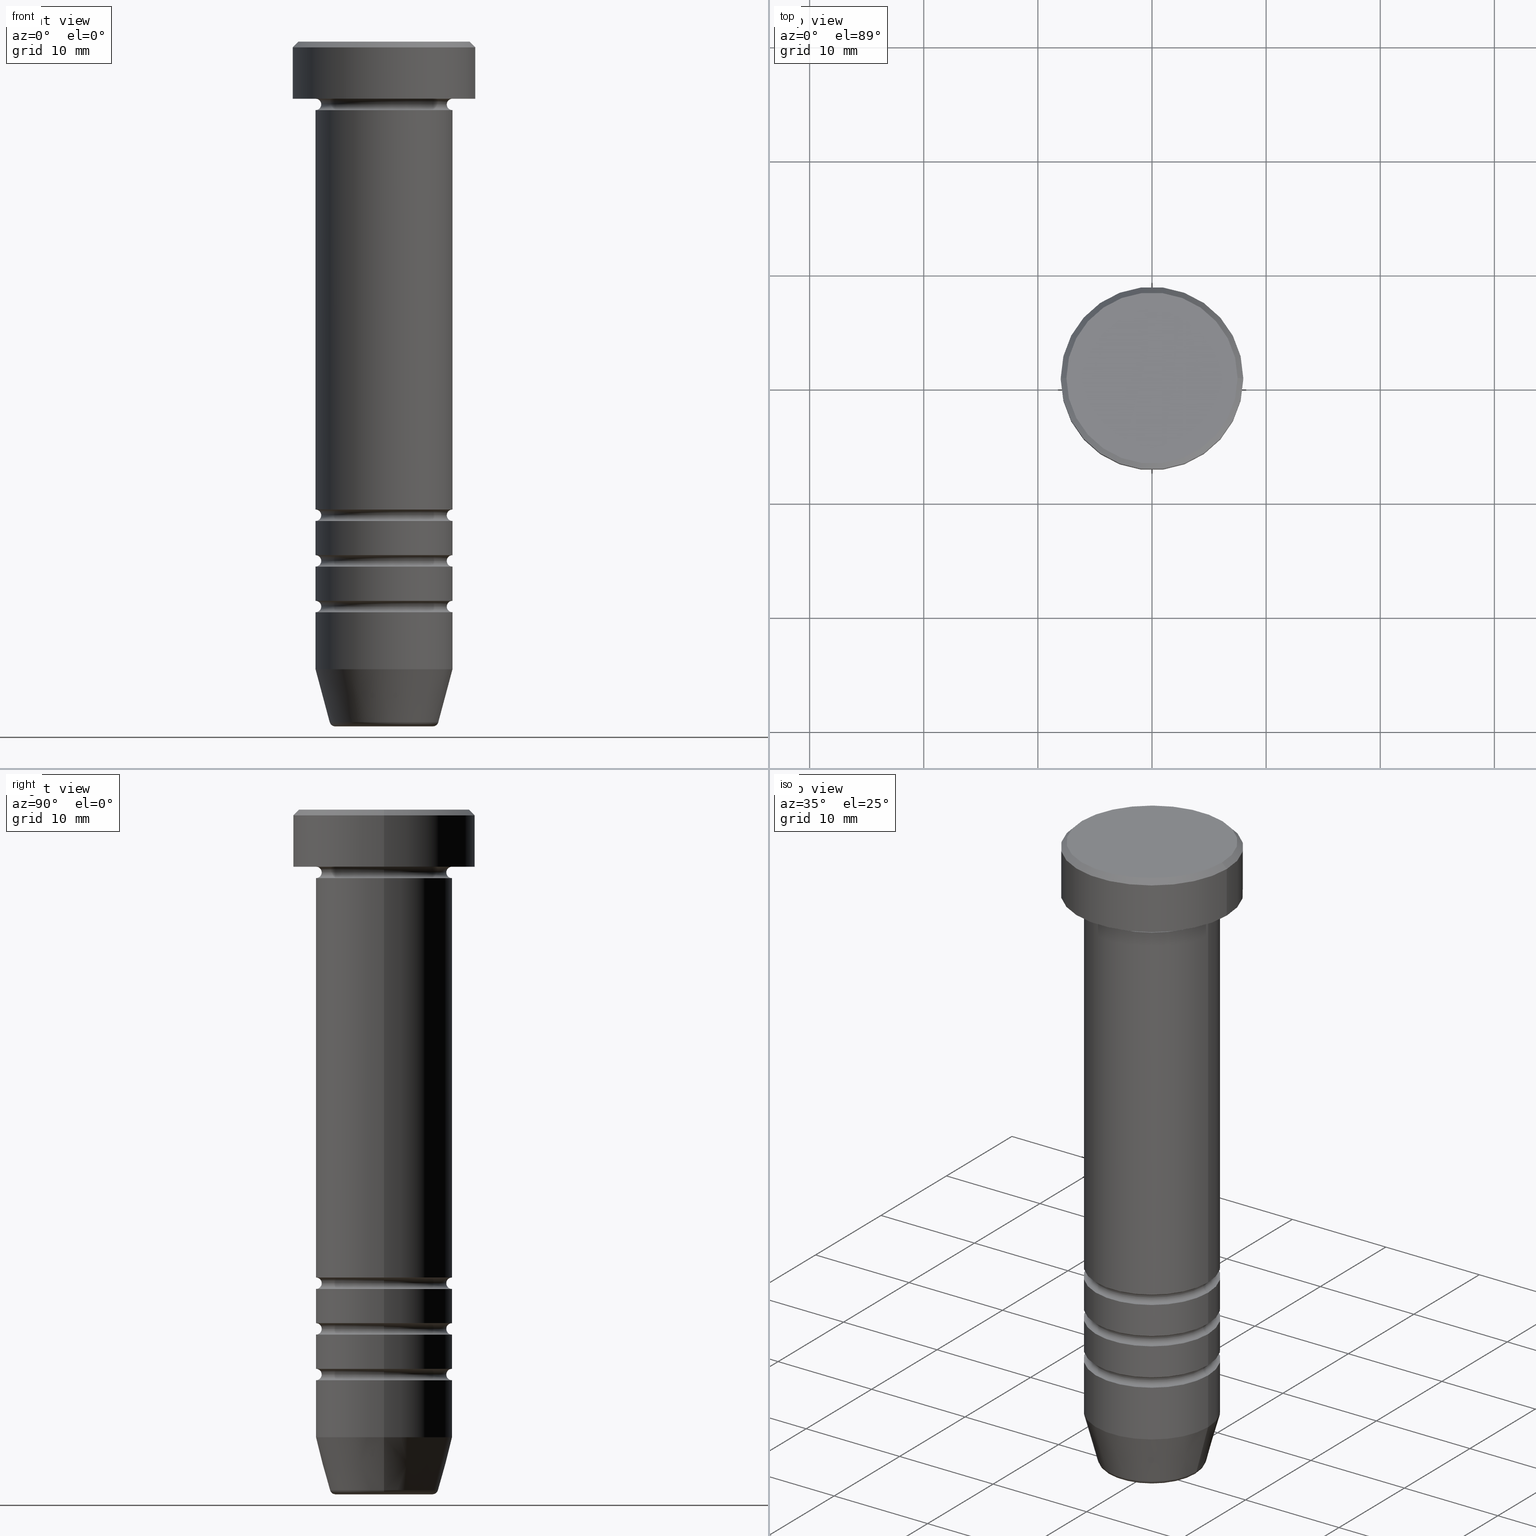
[diagram: canonical four-view strip — front | top / right | iso, engineering-drawing reading convention]
A machine part, canonical four-view strip (front | top / right | iso — engineering-drawing reading convention). The complete STEP part file that produces these views, byte-faithful:
ISO-10303-21;
HEADER;
FILE_DESCRIPTION (( 'STEP AP203' ),
    '1' );
FILE_NAME ('1084.STEP',
    '2024-01-03T00:06:23',
    ( '' ),
    ( '' ),
    'SwSTEP 2.0',
    'SolidWorks 2019',
    '' );
FILE_SCHEMA (( 'CONFIG_CONTROL_DESIGN' ));
ENDSEC;

DATA;
#1 = DIRECTION ( 'NONE',  ( 1.000000000000000000, 0.000000000000000000, 0.000000000000000000 ) ) ;
#2 = FACE_OUTER_BOUND ( 'NONE', #72, .T. ) ;
#3 = DIRECTION ( 'NONE',  ( 1.000000000000000000, 0.000000000000000000, 0.000000000000000000 ) ) ;
#4 = CARTESIAN_POINT ( 'NONE',  ( 8.000000000000000000, 0.000000000000000000, -0.5000000000000073275 ) ) ;
#5 = EDGE_CURVE ( 'NONE', #756, #404, #766, .T. ) ;
#6 = ORIENTED_EDGE ( 'NONE', *, *, #389, .T. ) ;
#7 = CARTESIAN_POINT ( 'NONE',  ( 0.000000000000000000, 1.224646799147352862E-15, -60.00000000000000000 ) ) ;
#8 = TOROIDAL_SURFACE ( 'NONE', #78, 5.999999999999994671, 0.5000000000000000000 ) ;
#9 = AXIS2_PLACEMENT_3D ( 'NONE', #291, #801, #70 ) ;
#10 = FACE_OUTER_BOUND ( 'NONE', #837, .T. ) ;
#11 = CIRCLE ( 'NONE', #965, 5.500000000000000000 ) ;
#12 = CARTESIAN_POINT ( 'NONE',  ( 0.000000000000000000, 0.000000000000000000, -41.00000000000000711 ) ) ;
#13 = CARTESIAN_POINT ( 'NONE',  ( 0.000000000000000000, 0.000000000000000000, -5.500000000000001776 ) ) ;
#14 = AXIS2_PLACEMENT_3D ( 'NONE', #405, #250, #723 ) ;
#15 = MANIFOLD_SOLID_BREP ( 'Zaoblit5', #645 ) ;
#16 = ORIENTED_EDGE ( 'NONE', *, *, #460, .F. ) ;
#17 = DIRECTION ( 'NONE',  ( 1.000000000000000000, 0.000000000000000000, 0.000000000000000000 ) ) ;
#18 = FACE_OUTER_BOUND ( 'NONE', #570, .T. ) ;
#19 = DIRECTION ( 'NONE',  ( 0.000000000000000000, 0.000000000000000000, -1.000000000000000000 ) ) ;
#20 = CARTESIAN_POINT ( 'NONE',  ( -5.499999999999995559, 7.041719095097274963E-16, -49.50000000000000000 ) ) ;
#21 = EDGE_CURVE ( 'NONE', #948, #781, #125, .T. ) ;
#22 = CARTESIAN_POINT ( 'NONE',  ( 0.000000000000000000, 0.000000000000000000, -60.00000000000000000 ) ) ;
#23 = VERTEX_POINT ( 'NONE', #433 ) ;
#24 = VERTEX_POINT ( 'NONE', #508 ) ;
#25 = ORIENTED_EDGE ( 'NONE', *, *, #281, .F. ) ;
#26 = AXIS2_PLACEMENT_3D ( 'NONE', #617, #214, #1023 ) ;
#27 = AXIS2_PLACEMENT_3D ( 'NONE', #865, #385, #719 ) ;
#28 = CARTESIAN_POINT ( 'NONE',  ( 0.000000000000000000, 0.000000000000000000, -15.00000000000000000 ) ) ;
#29 = CIRCLE ( 'NONE', #512, 6.000000000000000000 ) ;
#30 = AXIS2_PLACEMENT_3D ( 'NONE', #897, #398, #178 ) ;
#31 = DIRECTION ( 'NONE',  ( 1.000000000000000000, 0.000000000000000000, 0.000000000000000000 ) ) ;
#32 = VERTEX_POINT ( 'NONE', #347 ) ;
#33 = EDGE_CURVE ( 'NONE', #366, #679, #262, .T. ) ;
#34 = EDGE_LOOP ( 'NONE', ( #576, #1013 ) ) ;
#35 = DIRECTION ( 'NONE',  ( 0.000000000000000000, 0.000000000000000000, -1.000000000000000000 ) ) ;
#36 = CARTESIAN_POINT ( 'NONE',  ( 0.000000000000000000, 0.000000000000000000, -45.50000000000000711 ) ) ;
#37 = DIRECTION ( 'NONE',  ( 1.224646799147353207E-16, 1.000000000000000000, 0.000000000000000000 ) ) ;
#38 = ADVANCED_FACE ( 'NONE', ( #877 ), #1044, .T. ) ;
#39 = ORIENTED_EDGE ( 'NONE', *, *, #728, .F. ) ;
#40 = DIRECTION ( 'NONE',  ( 0.000000000000000000, -1.000000000000000000, 0.000000000000000000 ) ) ;
#41 = AXIS2_PLACEMENT_3D ( 'NONE', #1008, #289, #702 ) ;
#42 = CIRCLE ( 'NONE', #706, 6.000000000000000000 ) ;
#43 = AXIS2_PLACEMENT_3D ( 'NONE', #56, #848, #439 ) ;
#44 = CIRCLE ( 'NONE', #968, 6.000000000000000000 ) ;
#45 = EDGE_CURVE ( 'NONE', #470, #679, #609, .T. ) ;
#46 = ORIENTED_EDGE ( 'NONE', *, *, #460, .T. ) ;
#47 = LINE ( 'NONE', #941, #279 ) ;
#48 = VERTEX_POINT ( 'NONE', #703 ) ;
#49 = DIRECTION ( 'NONE',  ( -0.000000000000000000, -0.000000000000000000, 1.000000000000000000 ) ) ;
#50 = CARTESIAN_POINT ( 'NONE',  ( 0.000000000000000000, 0.000000000000000000, -49.50000000000000000 ) ) ;
#51 = ADVANCED_FACE ( 'NONE', ( #540 ), #1033, .T. ) ;
#52 = CARTESIAN_POINT ( 'NONE',  ( 5.499999999999995559, 0.000000000000000000, -49.50000000000000000 ) ) ;
#53 = ORIENTED_EDGE ( 'NONE', *, *, #254, .F. ) ;
#54 = CARTESIAN_POINT ( 'NONE',  ( -6.000000000000000888, 7.347880794884120722E-16, -15.00000000000000000 ) ) ;
#55 = DIRECTION ( 'NONE',  ( 0.000000000000000000, 0.000000000000000000, -1.000000000000000000 ) ) ;
#56 = CARTESIAN_POINT ( 'NONE',  ( 0.000000000000000000, 0.000000000000000000, -6.000000000000001776 ) ) ;
#57 = VERTEX_POINT ( 'NONE', #152 ) ;
#58 = CARTESIAN_POINT ( 'NONE',  ( -5.999999999999994671, 7.347880794884112834E-16, -49.50000000000000000 ) ) ;
#59 = PRODUCT_DEFINITION_FORMATION_WITH_SPECIFIED_SOURCE ( 'LIBOVOLN�', '', #236, .NOT_KNOWN. ) ;
#60 = AXIS2_PLACEMENT_3D ( 'NONE', #694, #686, #1014 ) ;
#61 = AXIS2_PLACEMENT_3D ( 'NONE', #666, #557, #472 ) ;
#62 = VERTEX_POINT ( 'NONE', #955 ) ;
#63 = CYLINDRICAL_SURFACE ( 'NONE', #343, 6.000000000000000000 ) ;
#64 = ADVANCED_FACE ( 'NONE', ( #449 ), #478, .F. ) ;
#65 = ORIENTED_EDGE ( 'NONE', *, *, #788, .F. ) ;
#66 = CARTESIAN_POINT ( 'NONE',  ( 0.000000000000000000, 0.000000000000000000, -42.00000000000000711 ) ) ;
#67 = ORIENTED_EDGE ( 'NONE', *, *, #819, .F. ) ;
#68 = FACE_OUTER_BOUND ( 'NONE', #1061, .T. ) ;
#69 = DATE_AND_TIME ( #566, #626 ) ;
#70 = DIRECTION ( 'NONE',  ( 1.000000000000000000, 0.000000000000000000, 0.000000000000000000 ) ) ;
#71 = CC_DESIGN_PERSON_AND_ORGANIZATION_ASSIGNMENT ( #734, #916, ( #396 ) ) ;
#72 = EDGE_LOOP ( 'NONE', ( #691, #1057, #658, #77 ) ) ;
#73 = DIRECTION ( 'NONE',  ( -1.000000000000000000, 1.224646799147353454E-16, 0.000000000000000000 ) ) ;
#74 = ORIENTED_EDGE ( 'NONE', *, *, #483, .F. ) ;
#75 = DIRECTION ( 'NONE',  ( 1.000000000000000000, 0.000000000000000000, 0.000000000000000000 ) ) ;
#76 = DIRECTION ( 'NONE',  ( -0.000000000000000000, -0.000000000000000000, 1.000000000000000000 ) ) ;
#77 = ORIENTED_EDGE ( 'NONE', *, *, #919, .F. ) ;
#78 = AXIS2_PLACEMENT_3D ( 'NONE', #1053, #999, #538 ) ;
#79 = AXIS2_PLACEMENT_3D ( 'NONE', #473, #530, #132 ) ;
#80 = AXIS2_PLACEMENT_3D ( 'NONE', #384, #234, #155 ) ;
#81 = DATE_TIME_ROLE ( 'creation_date' ) ;
#82 = DIRECTION ( 'NONE',  ( -0.000000000000000000, -0.000000000000000000, 1.000000000000000000 ) ) ;
#83 = ORIENTED_EDGE ( 'NONE', *, *, #483, .T. ) ;
#84 = EDGE_CURVE ( 'NONE', #556, #717, #624, .T. ) ;
#85 = PERSON_AND_ORGANIZATION ( #760, #839 ) ;
#86 = FACE_OUTER_BOUND ( 'NONE', #486, .T. ) ;
#87 = ORIENTED_EDGE ( 'NONE', *, *, #388, .T. ) ;
#88 = EDGE_CURVE ( 'NONE', #522, #57, #325, .T. ) ;
#89 = DIRECTION ( 'NONE',  ( -0.000000000000000000, -0.000000000000000000, 1.000000000000000000 ) ) ;
#90 = EDGE_CURVE ( 'NONE', #397, #224, #725, .T. ) ;
#91 = EDGE_LOOP ( 'NONE', ( #380, #504, #992, #285 ) ) ;
#92 = CARTESIAN_POINT ( 'NONE',  ( -4.276590543854901227, 5.237312920795743091E-16, -59.50000000000000000 ) ) ;
#93 = CIRCLE ( 'NONE', #340, 0.5000000000000004441 ) ;
#94 = CARTESIAN_POINT ( 'NONE',  ( 0.000000000000000000, 0.000000000000000000, 0.000000000000000000 ) ) ;
#95 = AXIS2_PLACEMENT_3D ( 'NONE', #942, #212, #149 ) ;
#96 = FACE_OUTER_BOUND ( 'NONE', #695, .T. ) ;
#97 = CARTESIAN_POINT ( 'NONE',  ( -5.999999999999994671, 7.347880794884112834E-16, -45.50000000000000000 ) ) ;
#98 = TOROIDAL_SURFACE ( 'NONE', #1017, 5.999999999999994671, 0.5000000000000000000 ) ;
#99 = EDGE_LOOP ( 'NONE', ( #746, #653, #1022, #220 ) ) ;
#100 = ADVANCED_FACE ( 'NONE', ( #709 ), #1039, .T. ) ;
#101 = ORIENTED_EDGE ( 'NONE', *, *, #602, .T. ) ;
#102 = DIRECTION ( 'NONE',  ( 0.000000000000000000, 0.000000000000000000, -1.000000000000000000 ) ) ;
#103 = CARTESIAN_POINT ( 'NONE',  ( 0.000000000000000000, 0.000000000000000000, -41.50000000000000711 ) ) ;
#104 = ORIENTED_EDGE ( 'NONE', *, *, #200, .T. ) ;
#105 = APPROVAL ( #887, 'NEUR�EN�' ) ;
#106 = APPROVAL_STATUS ( 'not_yet_approved' ) ;
#107 = EDGE_LOOP ( 'NONE', ( #982, #240, #793, #190 ) ) ;
#108 = DIRECTION ( 'NONE',  ( -0.000000000000000000, -0.000000000000000000, 1.000000000000000000 ) ) ;
#109 = ORIENTED_EDGE ( 'NONE', *, *, #728, .T. ) ;
#110 = AXIS2_PLACEMENT_3D ( 'NONE', #940, #773, #943 ) ;
#111 = LOCAL_TIME ( 1, 6, 23.00000000000000000, #153 ) ;
#112 = AXIS2_PLACEMENT_3D ( 'NONE', #66, #1042, #642 ) ;
#113 = ORIENTED_EDGE ( 'NONE', *, *, #804, .F. ) ;
#114 = EDGE_CURVE ( 'NONE', #652, #404, #651, .T. ) ;
#115 = LINE ( 'NONE', #601, #809 ) ;
#116 = FACE_OUTER_BOUND ( 'NONE', #580, .T. ) ;
#117 = VERTEX_POINT ( 'NONE', #137 ) ;
#118 = PLANE ( 'NONE',  #840 ) ;
#119 = EDGE_CURVE ( 'NONE', #23, #948, #892, .T. ) ;
#120 = VERTEX_POINT ( 'NONE', #647 ) ;
#121 = CARTESIAN_POINT ( 'NONE',  ( -5.999999999999998224, 7.347880794884118750E-16, -45.00000000000000000 ) ) ;
#122 = EDGE_LOOP ( 'NONE', ( #16, #611, #747, #275 ) ) ;
#123 = DIRECTION ( 'NONE',  ( -0.000000000000000000, -0.000000000000000000, 1.000000000000000000 ) ) ;
#124 = CIRCLE ( 'NONE', #26, 6.000000000000000000 ) ;
#125 = CIRCLE ( 'NONE', #911, 5.499999999999995559 ) ;
#126 = CIRCLE ( 'NONE', #95, 0.5000000000000004441 ) ;
#127 = CIRCLE ( 'NONE', #514, 6.000000000000000000 ) ;
#128 = EDGE_CURVE ( 'NONE', #24, #181, #424, .T. ) ;
#129 = DIRECTION ( 'NONE',  ( -0.000000000000000000, -0.000000000000000000, 1.000000000000000000 ) ) ;
#130 = ADVANCED_FACE ( 'NONE', ( #370 ), #63, .T. ) ;
#131 = LINE ( 'NONE', #536, #1005 ) ;
#132 = DIRECTION ( 'NONE',  ( 1.000000000000000000, 0.000000000000000000, 0.000000000000000000 ) ) ;
#133 = FACE_OUTER_BOUND ( 'NONE', #613, .T. ) ;
#134 = PERSON_AND_ORGANIZATION_ROLE ( 'classification_officer' ) ;
#135 = DIRECTION ( 'NONE',  ( -1.224646799147353207E-16, 1.000000000000000000, 0.000000000000000000 ) ) ;
#136 = DIRECTION ( 'NONE',  ( 0.000000000000000000, 0.000000000000000000, -1.000000000000000000 ) ) ;
#137 = CARTESIAN_POINT ( 'NONE',  ( 6.000000000000000000, 0.000000000000000000, -42.00000000000000711 ) ) ;
#138 = CALENDAR_DATE ( 2024, 3, 1 ) ;
#139 = DIRECTION ( 'NONE',  ( 0.000000000000000000, 0.000000000000000000, -1.000000000000000000 ) ) ;
#140 = EDGE_CURVE ( 'NONE', #23, #24, #378, .T. ) ;
#141 = ADVANCED_FACE ( 'NONE', ( #302 ), #1025, .T. ) ;
#142 = DIRECTION ( 'NONE',  ( -0.000000000000000000, -0.000000000000000000, 1.000000000000000000 ) ) ;
#143 =( GEOMETRIC_REPRESENTATION_CONTEXT ( 3 ) GLOBAL_UNCERTAINTY_ASSIGNED_CONTEXT ( ( #348 ) ) GLOBAL_UNIT_ASSIGNED_CONTEXT ( ( #311, #800, #729 ) ) REPRESENTATION_CONTEXT ( 'NONE', 'WORKASPACE' ) );
#144 = APPROVAL_PERSON_ORGANIZATION ( #834, #578, #420 ) ;
#145 = ORIENTED_EDGE ( 'NONE', *, *, #140, .F. ) ;
#146 = AXIS2_PLACEMENT_3D ( 'NONE', #851, #40, #759 ) ;
#147 = AXIS2_PLACEMENT_3D ( 'NONE', #988, #577, #562 ) ;
#148 = ORIENTED_EDGE ( 'NONE', *, *, #501, .F. ) ;
#149 = DIRECTION ( 'NONE',  ( 0.000000000000000000, 0.000000000000000000, -1.000000000000000000 ) ) ;
#150 = APPLICATION_PROTOCOL_DEFINITION ( 'international standard', 'config_control_design', 1994, #814 ) ;
#151 = ADVANCED_FACE ( 'NONE', ( #133 ), #468, .T. ) ;
#152 = CARTESIAN_POINT ( 'NONE',  ( -5.499999999999995559, 7.041719095097274963E-16, -41.50000000000000711 ) ) ;
#153 = COORDINATED_UNIVERSAL_TIME_OFFSET ( 1, 0, .AHEAD. ) ;
#154 = DIRECTION ( 'NONE',  ( 0.000000000000000000, 0.000000000000000000, -1.000000000000000000 ) ) ;
#155 = DIRECTION ( 'NONE',  ( 1.000000000000000000, 0.000000000000000000, 0.000000000000000000 ) ) ;
#156 = DIRECTION ( 'NONE',  ( -0.000000000000000000, -0.000000000000000000, 1.000000000000000000 ) ) ;
#157 = ORIENTED_EDGE ( 'NONE', *, *, #90, .F. ) ;
#158 = EDGE_CURVE ( 'NONE', #23, #842, #229, .T. ) ;
#159 = CARTESIAN_POINT ( 'NONE',  ( 0.000000000000000000, 0.000000000000000000, -49.50000000000000000 ) ) ;
#160 = CARTESIAN_POINT ( 'NONE',  ( 0.000000000000000000, 0.000000000000000000, 0.000000000000000000 ) ) ;
#161 = LINE ( 'NONE', #567, #947 ) ;
#162 = CARTESIAN_POINT ( 'NONE',  ( -5.999999999999994671, 7.347880794884112834E-16, -41.50000000000000711 ) ) ;
#163 = ORIENTED_EDGE ( 'NONE', *, *, #957, .F. ) ;
#164 = ADVANCED_FACE ( 'NONE', ( #655 ), #825, .F. ) ;
#165 = TOROIDAL_SURFACE ( 'NONE', #925, 6.000000000000000000, 0.5000000000000000000 ) ;
#166 = AXIS2_PLACEMENT_3D ( 'NONE', #474, #156, #75 ) ;
#167 = FACE_OUTER_BOUND ( 'NONE', #259, .T. ) ;
#168 = AXIS2_PLACEMENT_3D ( 'NONE', #350, #507, #272 ) ;
#169 = CONICAL_SURFACE ( 'NONE', #197, 7.499999999999992895, 0.7853981633974482790 ) ;
#170 = PERSON_AND_ORGANIZATION_ROLE ( 'design_owner' ) ;
#171 = CARTESIAN_POINT ( 'NONE',  ( 6.000000000000000000, 0.000000000000000000, -46.00000000000000711 ) ) ;
#172 = ORIENTED_EDGE ( 'NONE', *, *, #381, .F. ) ;
#173 = DIRECTION ( 'NONE',  ( -0.000000000000000000, -0.000000000000000000, 1.000000000000000000 ) ) ;
#174 = CC_DESIGN_PERSON_AND_ORGANIZATION_ASSIGNMENT ( #465, #134, ( #688 ) ) ;
#175 = DIRECTION ( 'NONE',  ( -0.000000000000000000, -0.000000000000000000, 1.000000000000000000 ) ) ;
#176 = ORIENTED_EDGE ( 'NONE', *, *, #114, .F. ) ;
#177 = DIRECTION ( 'NONE',  ( -0.000000000000000000, -0.000000000000000000, 1.000000000000000000 ) ) ;
#178 = DIRECTION ( 'NONE',  ( -1.000000000000000000, 0.000000000000000000, 0.000000000000000000 ) ) ;
#179 = ADVANCED_FACE ( 'NONE', ( #245 ), #326, .F. ) ;
#180 = VERTEX_POINT ( 'NONE', #820 ) ;
#181 = VERTEX_POINT ( 'NONE', #171 ) ;
#182 = CIRCLE ( 'NONE', #393, 0.5000000000000004441 ) ;
#183 = CIRCLE ( 'NONE', #841, 5.999999999999998224 ) ;
#184 = AXIS2_PLACEMENT_3D ( 'NONE', #377, #225, #844 ) ;
#185 = VERTEX_POINT ( 'NONE', #338 ) ;
#186 = COORDINATED_UNIVERSAL_TIME_OFFSET ( 1, 0, .AHEAD. ) ;
#187 = EDGE_LOOP ( 'NONE', ( #720, #163, #505, #920 ) ) ;
#188 = DIRECTION ( 'NONE',  ( 1.000000000000000000, 0.000000000000000000, 0.000000000000000000 ) ) ;
#189 = ORIENTED_EDGE ( 'NONE', *, *, #406, .T. ) ;
#190 = ORIENTED_EDGE ( 'NONE', *, *, #45, .T. ) ;
#191 = FACE_BOUND ( 'NONE', #998, .T. ) ;
#192 = CARTESIAN_POINT ( 'NONE',  ( -6.000000000000000000, 7.347880794884119736E-16, -5.500000000000001776 ) ) ;
#193 = EDGE_CURVE ( 'NONE', #717, #556, #42, .T. ) ;
#194 = EDGE_LOOP ( 'NONE', ( #539, #199, #189, #362 ) ) ;
#195 = FACE_OUTER_BOUND ( 'NONE', #361, .T. ) ;
#196 = AXIS2_PLACEMENT_3D ( 'NONE', #772, #49, #453 ) ;
#197 = AXIS2_PLACEMENT_3D ( 'NONE', #94, #328, #255 ) ;
#198 = CARTESIAN_POINT ( 'NONE',  ( 0.000000000000000000, 0.000000000000000000, -60.00000000000000000 ) ) ;
#199 = ORIENTED_EDGE ( 'NONE', *, *, #432, .F. ) ;
#200 = EDGE_CURVE ( 'NONE', #958, #843, #927, .T. ) ;
#201 = DIRECTION ( 'NONE',  ( 0.000000000000000000, 0.000000000000000000, -1.000000000000000000 ) ) ;
#202 = CARTESIAN_POINT ( 'NONE',  ( 4.759553456999439547, 0.000000000000000000, -59.62940952255125637 ) ) ;
#203 = VERTEX_POINT ( 'NONE', #906 ) ;
#204 = CARTESIAN_POINT ( 'NONE',  ( 0.000000000000000000, 0.000000000000000000, -15.00000000000000000 ) ) ;
#205 = ORIENTED_EDGE ( 'NONE', *, *, #469, .F. ) ;
#206 = CYLINDRICAL_SURFACE ( 'NONE', #873, 6.000000000000000000 ) ;
#207 = DIRECTION ( 'NONE',  ( -0.000000000000000000, -0.000000000000000000, 1.000000000000000000 ) ) ;
#208 = ADVANCED_FACE ( 'NONE', ( #86 ), #330, .T. ) ;
#209 = EDGE_CURVE ( 'NONE', #652, #57, #182, .T. ) ;
#210 = CARTESIAN_POINT ( 'NONE',  ( -6.000000000000000000, 7.347880794884119736E-16, 0.000000000000000000 ) ) ;
#211 = CARTESIAN_POINT ( 'NONE',  ( -5.499999999999995559, 7.041719095097278907E-16, -45.50000000000000000 ) ) ;
#212 = DIRECTION ( 'NONE',  ( 0.000000000000000000, -1.000000000000000000, 0.000000000000000000 ) ) ;
#213 = CARTESIAN_POINT ( 'NONE',  ( 6.000000000000000000, 0.000000000000000000, -15.00000000000000000 ) ) ;
#214 = DIRECTION ( 'NONE',  ( -0.000000000000000000, -0.000000000000000000, 1.000000000000000000 ) ) ;
#215 = AXIS2_PLACEMENT_3D ( 'NONE', #198, #583, #812 ) ;
#216 = VECTOR ( 'NONE', #713, 1000.000000000000000 ) ;
#217 = AXIS2_PLACEMENT_3D ( 'NONE', #390, #976, #724 ) ;
#218 = ORIENTED_EDGE ( 'NONE', *, *, #957, .T. ) ;
#219 = CARTESIAN_POINT ( 'NONE',  ( -5.999999999999996447, 7.347880794884115792E-16, 0.000000000000000000 ) ) ;
#220 = ORIENTED_EDGE ( 'NONE', *, *, #994, .F. ) ;
#221 = DIRECTION ( 'NONE',  ( -0.000000000000000000, -0.000000000000000000, 1.000000000000000000 ) ) ;
#222 = FACE_OUTER_BOUND ( 'NONE', #466, .T. ) ;
#223 = DIRECTION ( 'NONE',  ( 1.224646799147353207E-16, 1.000000000000000000, 0.000000000000000000 ) ) ;
#224 = VERTEX_POINT ( 'NONE', #4 ) ;
#225 = DIRECTION ( 'NONE',  ( -0.000000000000000000, -0.000000000000000000, 1.000000000000000000 ) ) ;
#226 = DATE_AND_TIME ( #959, #705 ) ;
#227 = DIRECTION ( 'NONE',  ( -0.000000000000000000, -0.000000000000000000, 1.000000000000000000 ) ) ;
#228 = TOROIDAL_SURFACE ( 'NONE', #110, 5.999999999999994671, 0.5000000000000000000 ) ;
#229 = CIRCLE ( 'NONE', #592, 5.999999999999992895 ) ;
#230 = CARTESIAN_POINT ( 'NONE',  ( 6.000000000000000000, 0.000000000000000000, -54.99999999999999289 ) ) ;
#231 = AXIS2_PLACEMENT_3D ( 'NONE', #807, #399, #484 ) ;
#232 = VECTOR ( 'NONE', #517, 1000.000000000000114 ) ;
#233 = EDGE_CURVE ( 'NONE', #682, #185, #824, .T. ) ;
#234 = DIRECTION ( 'NONE',  ( -0.000000000000000000, -0.000000000000000000, 1.000000000000000000 ) ) ;
#235 = CARTESIAN_POINT ( 'NONE',  ( 0.000000000000000000, 0.000000000000000000, 0.000000000000000000 ) ) ;
#236 = PRODUCT ( '1084', '1084', '', ( #594 ) ) ;
#237 = CARTESIAN_POINT ( 'NONE',  ( 6.000000000000000000, 0.000000000000000000, 0.000000000000000000 ) ) ;
#238 = DIRECTION ( 'NONE',  ( -0.000000000000000000, -1.000000000000000000, -0.000000000000000000 ) ) ;
#239 = EDGE_CURVE ( 'NONE', #843, #874, #946, .T. ) ;
#240 = ORIENTED_EDGE ( 'NONE', *, *, #602, .F. ) ;
#241 = DIRECTION ( 'NONE',  ( -1.000000000000000000, 0.000000000000000000, 0.000000000000000000 ) ) ;
#242 = VERTEX_POINT ( 'NONE', #745 ) ;
#243 = FACE_OUTER_BOUND ( 'NONE', #835, .T. ) ;
#244 = APPLICATION_PROTOCOL_DEFINITION ( 'international standard', 'config_control_design', 1994, #480 ) ;
#245 = FACE_OUTER_BOUND ( 'NONE', #107, .T. ) ;
#246 = EDGE_LOOP ( 'NONE', ( #53, #421, #1050, #547 ) ) ;
#247 = DIRECTION ( 'NONE',  ( 1.000000000000000000, 0.000000000000000000, 0.000000000000000000 ) ) ;
#248 = AXIS2_PLACEMENT_3D ( 'NONE', #401, #1059, #736 ) ;
#249 = CIRCLE ( 'NONE', #61, 6.000000000000000000 ) ;
#250 = DIRECTION ( 'NONE',  ( 0.000000000000000000, 0.000000000000000000, -1.000000000000000000 ) ) ;
#251 = CARTESIAN_POINT ( 'NONE',  ( 0.000000000000000000, 0.000000000000000000, -45.00000000000000000 ) ) ;
#252 = ORIENTED_EDGE ( 'NONE', *, *, #735, .T. ) ;
#253 = DIRECTION ( 'NONE',  ( 0.000000000000000000, 0.000000000000000000, -1.000000000000000000 ) ) ;
#254 = EDGE_CURVE ( 'NONE', #366, #435, #11, .T. ) ;
#255 = DIRECTION ( 'NONE',  ( -1.000000000000000000, 0.000000000000000000, 0.000000000000000000 ) ) ;
#256 = DIRECTION ( 'NONE',  ( 1.000000000000000000, 0.000000000000000000, 0.000000000000000000 ) ) ;
#257 = ORIENTED_EDGE ( 'NONE', *, *, #355, .T. ) ;
#258 = LINE ( 'NONE', #587, #571 ) ;
#259 = EDGE_LOOP ( 'NONE', ( #218, #331 ) ) ;
#260 = CIRCLE ( 'NONE', #891, 5.499999999999995559 ) ;
#261 = APPROVAL_ROLE ( '' ) ;
#262 = CIRCLE ( 'NONE', #853, 0.5000000000000004441 ) ;
#263 = ORIENTED_EDGE ( 'NONE', *, *, #281, .T. ) ;
#264 = CIRCLE ( 'NONE', #168, 6.000000000000000000 ) ;
#265 = DIRECTION ( 'NONE',  ( -0.000000000000000000, -0.000000000000000000, 1.000000000000000000 ) ) ;
#266 = ORIENTED_EDGE ( 'NONE', *, *, #684, .T. ) ;
#267 = PERSON_AND_ORGANIZATION ( #760, #839 ) ;
#268 = ORIENTED_EDGE ( 'NONE', *, *, #684, .F. ) ;
#269 = DIRECTION ( 'NONE',  ( 1.000000000000000000, 0.000000000000000000, 0.000000000000000000 ) ) ;
#270 = EDGE_CURVE ( 'NONE', #180, #242, #677, .T. ) ;
#271 = EDGE_LOOP ( 'NONE', ( #425, #563, #1034, #39 ) ) ;
#272 = DIRECTION ( 'NONE',  ( 1.000000000000000000, 0.000000000000000000, 0.000000000000000000 ) ) ;
#273 = ADVANCED_FACE ( 'NONE', ( #191, #1010 ), #118, .T. ) ;
#274 = CARTESIAN_POINT ( 'NONE',  ( 6.000000000000000000, 0.000000000000000000, -15.00000000000000000 ) ) ;
#275 = ORIENTED_EDGE ( 'NONE', *, *, #516, .F. ) ;
#276 = CONICAL_SURFACE ( 'NONE', #215, 4.660254037844382857, 0.2617993877991499074 ) ;
#277 = VECTOR ( 'NONE', #312, 1000.000000000000000 ) ;
#278 = CARTESIAN_POINT ( 'NONE',  ( 0.000000000000000000, 8.000000000000000000, -5.000000000000000888 ) ) ;
#279 = VECTOR ( 'NONE', #403, 1000.000000000000114 ) ;
#280 = CARTESIAN_POINT ( 'NONE',  ( 0.000000000000000000, 0.000000000000000000, -5.000000000000000000 ) ) ;
#281 = EDGE_CURVE ( 'NONE', #185, #717, #115, .T. ) ;
#282 = DIRECTION ( 'NONE',  ( -0.000000000000000000, -0.000000000000000000, 1.000000000000000000 ) ) ;
#283 = DIRECTION ( 'NONE',  ( -1.000000000000000000, 0.000000000000000000, 0.000000000000000000 ) ) ;
#284 = DIRECTION ( 'NONE',  ( 1.000000000000000000, 0.000000000000000000, 0.000000000000000000 ) ) ;
#285 = ORIENTED_EDGE ( 'NONE', *, *, #751, .F. ) ;
#286 = DIRECTION ( 'NONE',  ( 0.000000000000000000, -1.000000000000000000, 0.000000000000000000 ) ) ;
#287 = CARTESIAN_POINT ( 'NONE',  ( -6.000000000000000000, 7.347880794884119736E-16, -6.000000000000001776 ) ) ;
#288 = CARTESIAN_POINT ( 'NONE',  ( 5.999999999999994671, 7.347880794884112834E-16, -45.50000000000000711 ) ) ;
#289 = DIRECTION ( 'NONE',  ( -0.000000000000000000, -0.000000000000000000, 1.000000000000000000 ) ) ;
#290 = CIRCLE ( 'NONE', #305, 0.5000000000000004441 ) ;
#291 = CARTESIAN_POINT ( 'NONE',  ( 0.000000000000000000, 0.000000000000000000, 0.000000000000000000 ) ) ;
#292 = CIRCLE ( 'NONE', #787, 0.5000000000000004441 ) ;
#293 = DIRECTION ( 'NONE',  ( 1.000000000000000000, 0.000000000000000000, 0.000000000000000000 ) ) ;
#294 = DIRECTION ( 'NONE',  ( 0.000000000000000000, 0.000000000000000000, -1.000000000000000000 ) ) ;
#295 = DIRECTION ( 'NONE',  ( 1.000000000000000000, 0.000000000000000000, 0.000000000000000000 ) ) ;
#296 = EDGE_CURVE ( 'NONE', #185, #715, #264, .T. ) ;
#297 = EDGE_LOOP ( 'NONE', ( #731, #1043, #336, #832 ) ) ;
#298 = CARTESIAN_POINT ( 'NONE',  ( 5.999999999999992895, 0.000000000000000000, -41.00000000000000711 ) ) ;
#299 = DIRECTION ( 'NONE',  ( 1.000000000000000000, 0.000000000000000000, 0.000000000000000000 ) ) ;
#300 = CARTESIAN_POINT ( 'NONE',  ( 0.000000000000000000, 0.000000000000000000, -60.00000000000000000 ) ) ;
#301 = DIRECTION ( 'NONE',  ( 1.000000000000000000, 0.000000000000000000, 0.000000000000000000 ) ) ;
#302 = FACE_OUTER_BOUND ( 'NONE', #768, .T. ) ;
#303 = DIRECTION ( 'NONE',  ( -0.000000000000000000, -0.000000000000000000, 1.000000000000000000 ) ) ;
#304 = CARTESIAN_POINT ( 'NONE',  ( 0.000000000000000000, 0.000000000000000000, 0.000000000000000000 ) ) ;
#305 = AXIS2_PLACEMENT_3D ( 'NONE', #288, #625, #537 ) ;
#306 = LOCAL_TIME ( 1, 6, 23.00000000000000000, #186 ) ;
#307 = VECTOR ( 'NONE', #786, 1000.000000000000000 ) ;
#308 = FACE_OUTER_BOUND ( 'NONE', #481, .T. ) ;
#309 = CIRCLE ( 'NONE', #43, 6.000000000000000000 ) ;
#310 = EDGE_CURVE ( 'NONE', #890, #120, #29, .T. ) ;
#311 =( LENGTH_UNIT ( ) NAMED_UNIT ( * ) SI_UNIT ( .MILLI., .METRE. ) );
#312 = DIRECTION ( 'NONE',  ( -0.000000000000000000, -0.000000000000000000, 1.000000000000000000 ) ) ;
#313 = FACE_OUTER_BOUND ( 'NONE', #515, .T. ) ;
#314 = ORIENTED_EDGE ( 'NONE', *, *, #200, .F. ) ;
#315 = EDGE_LOOP ( 'NONE', ( #25, #830, #430, #748 ) ) ;
#316 = CARTESIAN_POINT ( 'NONE',  ( 0.000000000000000000, 0.000000000000000000, -49.00000000000000000 ) ) ;
#317 = CC_DESIGN_DATE_AND_TIME_ASSIGNMENT ( #718, #81, ( #396 ) ) ;
#318 = ORIENTED_EDGE ( 'NONE', *, *, #764, .F. ) ;
#319 = DIRECTION ( 'NONE',  ( 0.000000000000000000, -0.000000000000000000, 1.000000000000000000 ) ) ;
#320 = DIRECTION ( 'NONE',  ( -0.000000000000000000, -0.000000000000000000, 1.000000000000000000 ) ) ;
#321 = DIRECTION ( 'NONE',  ( -0.2588190451025211836, 3.169619151431770488E-17, 0.9659258262890680902 ) ) ;
#322 = EDGE_CURVE ( 'NONE', #435, #470, #569, .T. ) ;
#323 = CIRCLE ( 'NONE', #806, 8.000000000000000000 ) ;
#324 = DIRECTION ( 'NONE',  ( 1.000000000000000000, 0.000000000000000000, 0.000000000000000000 ) ) ;
#325 = CIRCLE ( 'NONE', #753, 0.5000000000000004441 ) ;
#326 = TOROIDAL_SURFACE ( 'NONE', #358, 6.000000000000000000, 0.5000000000000000000 ) ;
#327 = AXIS2_PLACEMENT_3D ( 'NONE', #408, #1056, #17 ) ;
#328 = DIRECTION ( 'NONE',  ( 0.000000000000000000, 0.000000000000000000, -1.000000000000000000 ) ) ;
#329 = FACE_OUTER_BOUND ( 'NONE', #901, .T. ) ;
#330 = CYLINDRICAL_SURFACE ( 'NONE', #248, 5.999999999999996447 ) ;
#331 = ORIENTED_EDGE ( 'NONE', *, *, #270, .T. ) ;
#332 = EDGE_CURVE ( 'NONE', #224, #387, #742, .T. ) ;
#333 = DIRECTION ( 'NONE',  ( -0.000000000000000000, -0.000000000000000000, 1.000000000000000000 ) ) ;
#334 = ORIENTED_EDGE ( 'NONE', *, *, #488, .F. ) ;
#335 = DIRECTION ( 'NONE',  ( -0.000000000000000000, -0.000000000000000000, 1.000000000000000000 ) ) ;
#336 = ORIENTED_EDGE ( 'NONE', *, *, #5, .F. ) ;
#337 = ADVANCED_FACE ( 'NONE', ( #195 ), #353, .F. ) ;
#338 = CARTESIAN_POINT ( 'NONE',  ( -6.000000000000000000, 7.347880794884119736E-16, -54.99999999999999289 ) ) ;
#339 = ORIENTED_EDGE ( 'NONE', *, *, #158, .T. ) ;
#340 = AXIS2_PLACEMENT_3D ( 'NONE', #672, #913, #1004 ) ;
#341 = AXIS2_PLACEMENT_3D ( 'NONE', #896, #991, #256 ) ;
#342 = EDGE_LOOP ( 'NONE', ( #813, #546, #665, #1045 ) ) ;
#343 = AXIS2_PLACEMENT_3D ( 'NONE', #978, #545, #552 ) ;
#344 = AXIS2_PLACEMENT_3D ( 'NONE', #316, #663, #1 ) ;
#345 = ADVANCED_FACE ( 'NONE', ( #615 ), #1003, .T. ) ;
#346 = FACE_OUTER_BOUND ( 'NONE', #99, .T. ) ;
#347 = CARTESIAN_POINT ( 'NONE',  ( 5.499999999999995559, 0.000000000000000000, -45.50000000000000000 ) ) ;
#348 = UNCERTAINTY_MEASURE_WITH_UNIT (LENGTH_MEASURE( 1.000000000000000082E-05 ), #311, 'distance_accuracy_value', 'NONE');
#349 = ORIENTED_EDGE ( 'NONE', *, *, #488, .T. ) ;
#350 = CARTESIAN_POINT ( 'NONE',  ( 0.000000000000000000, 0.000000000000000000, -54.99999999999999289 ) ) ;
#351 = ADVANCED_FACE ( 'NONE', ( #938 ), #206, .T. ) ;
#352 = ORIENTED_EDGE ( 'NONE', *, *, #233, .F. ) ;
#353 = PLANE ( 'NONE',  #60 ) ;
#354 = DIRECTION ( 'NONE',  ( -1.000000000000000000, 1.224646799147351482E-16, 0.000000000000000000 ) ) ;
#355 = EDGE_CURVE ( 'NONE', #673, #682, #646, .T. ) ;
#356 = ORIENTED_EDGE ( 'NONE', *, *, #525, .F. ) ;
#357 = APPROVAL_PERSON_ORGANIZATION ( #973, #457, #779 ) ;
#358 = AXIS2_PLACEMENT_3D ( 'NONE', #13, #485, #810 ) ;
#359 = CARTESIAN_POINT ( 'NONE',  ( 0.000000000000000000, 0.000000000000000000, -60.00000000000000000 ) ) ;
#360 = CIRCLE ( 'NONE', #827, 0.5000000000000004441 ) ;
#361 = EDGE_LOOP ( 'NONE', ( #972, #1037 ) ) ;
#362 = ORIENTED_EDGE ( 'NONE', *, *, #21, .F. ) ;
#363 = DIRECTION ( 'NONE',  ( 1.000000000000000000, 0.000000000000000000, 0.000000000000000000 ) ) ;
#364 = SHAPE_DEFINITION_REPRESENTATION ( #559, #977 ) ;
#365 = DIRECTION ( 'NONE',  ( -0.000000000000000000, -0.000000000000000000, 1.000000000000000000 ) ) ;
#366 = VERTEX_POINT ( 'NONE', #782 ) ;
#367 = EDGE_CURVE ( 'NONE', #32, #874, #984, .T. ) ;
#368 = FACE_OUTER_BOUND ( 'NONE', #661, .T. ) ;
#369 = ADVANCED_FACE ( 'NONE', ( #467 ), #754, .F. ) ;
#370 = FACE_OUTER_BOUND ( 'NONE', #685, .T. ) ;
#371 = ORIENTED_EDGE ( 'NONE', *, *, #501, .T. ) ;
#372 = ADVANCED_FACE ( 'NONE', ( #458 ), #448, .T. ) ;
#373 = AXIS2_PLACEMENT_3D ( 'NONE', #160, #997, #654 ) ;
#374 = CARTESIAN_POINT ( 'NONE',  ( -5.999999999999994671, 0.000000000000000000, -41.50000000000000711 ) ) ;
#375 = AXIS2_PLACEMENT_3D ( 'NONE', #763, #35, #923 ) ;
#376 = AXIS2_PLACEMENT_3D ( 'NONE', #92, #487, #73 ) ;
#377 = CARTESIAN_POINT ( 'NONE',  ( 0.000000000000000000, 0.000000000000000000, -49.50000000000000000 ) ) ;
#378 = LINE ( 'NONE', #857, #216 ) ;
#379 = CC_DESIGN_PERSON_AND_ORGANIZATION_ASSIGNMENT ( #631, #860, ( #59 ) ) ;
#380 = ORIENTED_EDGE ( 'NONE', *, *, #921, .F. ) ;
#381 = EDGE_CURVE ( 'NONE', #843, #522, #880, .T. ) ;
#382 = DATE_TIME_ROLE ( 'classification_date' ) ;
#383 = APPROVAL_DATE_TIME ( #226, #578 ) ;
#384 = CARTESIAN_POINT ( 'NONE',  ( 0.000000000000000000, 0.000000000000000000, -59.50000000000000000 ) ) ;
#385 = DIRECTION ( 'NONE',  ( 0.000000000000000000, 0.000000000000000000, -1.000000000000000000 ) ) ;
#386 = FACE_OUTER_BOUND ( 'NONE', #936, .T. ) ;
#387 = VERTEX_POINT ( 'NONE', #869 ) ;
#388 = EDGE_CURVE ( 'NONE', #1055, #915, #1016, .T. ) ;
#389 = EDGE_CURVE ( 'NONE', #781, #948, #462, .T. ) ;
#390 = CARTESIAN_POINT ( 'NONE',  ( 0.000000000000000000, 0.000000000000000000, -0.5000000000000073275 ) ) ;
#391 = CIRCLE ( 'NONE', #549, 5.499999999999995559 ) ;
#392 = AXIS2_PLACEMENT_3D ( 'NONE', #304, #142, #789 ) ;
#393 = AXIS2_PLACEMENT_3D ( 'NONE', #162, #476, #492 ) ;
#394 = DIRECTION ( 'NONE',  ( -0.000000000000000000, -0.000000000000000000, 1.000000000000000000 ) ) ;
#395 = CIRCLE ( 'NONE', #693, 6.000000000000000000 ) ;
#396 = PRODUCT_DEFINITION ( 'NEZN�M�', '', #59, #858 ) ;
#397 = VERTEX_POINT ( 'NONE', #638 ) ;
#398 = DIRECTION ( 'NONE',  ( -0.000000000000000000, -0.000000000000000000, 1.000000000000000000 ) ) ;
#399 = DIRECTION ( 'NONE',  ( -0.000000000000000000, -0.000000000000000000, 1.000000000000000000 ) ) ;
#400 = APPROVAL_DATE_TIME ( #69, #105 ) ;
#401 = CARTESIAN_POINT ( 'NONE',  ( 0.000000000000000000, 0.000000000000000000, 0.000000000000000000 ) ) ;
#402 = ORIENTED_EDGE ( 'NONE', *, *, #788, .T. ) ;
#403 = DIRECTION ( 'NONE',  ( -0.7071067811865474617, 0.000000000000000000, -0.7071067811865474617 ) ) ;
#404 = VERTEX_POINT ( 'NONE', #54 ) ;
#405 = CARTESIAN_POINT ( 'NONE',  ( 0.000000000000000000, 0.000000000000000000, -5.500000000000001776 ) ) ;
#406 = EDGE_CURVE ( 'NONE', #842, #781, #126, .T. ) ;
#407 = AXIS2_PLACEMENT_3D ( 'NONE', #934, #422, #434 ) ;
#408 = CARTESIAN_POINT ( 'NONE',  ( 0.000000000000000000, 0.000000000000000000, 0.000000000000000000 ) ) ;
#409 = AXIS2_PLACEMENT_3D ( 'NONE', #794, #634, #620 ) ;
#410 = CIRCLE ( 'NONE', #30, 4.759553456999439547 ) ;
#411 = ORIENTED_EDGE ( 'NONE', *, *, #388, .F. ) ;
#412 = DIRECTION ( 'NONE',  ( -1.000000000000000000, -1.224646799147351482E-16, 0.000000000000000000 ) ) ;
#413 = CARTESIAN_POINT ( 'NONE',  ( -4.660254037844382857, 5.707165190659651882E-16, -60.00000000000000000 ) ) ;
#414 = EDGE_LOOP ( 'NONE', ( #633, #101, #707, #438 ) ) ;
#415 = ORIENTED_EDGE ( 'NONE', *, *, #310, .T. ) ;
#416 = CARTESIAN_POINT ( 'NONE',  ( 0.000000000000000000, 0.000000000000000000, 0.000000000000000000 ) ) ;
#417 = ORIENTED_EDGE ( 'NONE', *, *, #128, .F. ) ;
#418 = CYLINDRICAL_SURFACE ( 'NONE', #407, 5.999999999999996447 ) ;
#419 = ADVANCED_FACE ( 'NONE', ( #68 ), #528, .F. ) ;
#420 = APPROVAL_ROLE ( '' ) ;
#421 = ORIENTED_EDGE ( 'NONE', *, *, #33, .T. ) ;
#422 = DIRECTION ( 'NONE',  ( -0.000000000000000000, -0.000000000000000000, 1.000000000000000000 ) ) ;
#423 = AXIS2_PLACEMENT_3D ( 'NONE', #597, #826, #1011 ) ;
#424 = CIRCLE ( 'NONE', #1027, 6.000000000000000000 ) ;
#425 = ORIENTED_EDGE ( 'NONE', *, *, #432, .T. ) ;
#426 = ADVANCED_FACE ( 'NONE', ( #368 ), #733, .T. ) ;
#427 = AXIS2_PLACEMENT_3D ( 'NONE', #639, #227, #533 ) ;
#428 = CIRCLE ( 'NONE', #531, 5.999999999999992895 ) ;
#429 = CARTESIAN_POINT ( 'NONE',  ( 0.000000000000000000, 0.000000000000000000, -5.500000000000001776 ) ) ;
#430 = ORIENTED_EDGE ( 'NONE', *, *, #714, .T. ) ;
#431 = DIRECTION ( 'NONE',  ( -1.000000000000000000, 0.000000000000000000, -0.000000000000000000 ) ) ;
#432 = EDGE_CURVE ( 'NONE', #842, #23, #692, .T. ) ;
#433 = CARTESIAN_POINT ( 'NONE',  ( -5.999999999999992895, 7.347880794884112834E-16, -49.00000000000000000 ) ) ;
#434 = DIRECTION ( 'NONE',  ( 1.000000000000000000, 0.000000000000000000, 0.000000000000000000 ) ) ;
#435 = VERTEX_POINT ( 'NONE', #980 ) ;
#436 = DIRECTION ( 'NONE',  ( -1.000000000000000000, 0.000000000000000000, 0.000000000000000000 ) ) ;
#437 = PRODUCT_RELATED_PRODUCT_CATEGORY ( 'detail', '', ( #236 ) ) ;
#438 = ORIENTED_EDGE ( 'NONE', *, *, #846, .F. ) ;
#439 = DIRECTION ( 'NONE',  ( 1.000000000000000000, 0.000000000000000000, 0.000000000000000000 ) ) ;
#440 = AXIS2_PLACEMENT_3D ( 'NONE', #22, #503, #284 ) ;
#441 = CARTESIAN_POINT ( 'NONE',  ( 0.000000000000000000, 0.000000000000000000, -5.000000000000000888 ) ) ;
#442 = CC_DESIGN_APPROVAL ( #105, ( #396 ) ) ;
#443 = AXIS2_PLACEMENT_3D ( 'NONE', #1020, #154, #301 ) ;
#444 = EDGE_LOOP ( 'NONE', ( #561, #529, #6, #74 ) ) ;
#445 = DIRECTION ( 'NONE',  ( 1.000000000000000000, 0.000000000000000000, 0.000000000000000000 ) ) ;
#446 = TOROIDAL_SURFACE ( 'NONE', #14, 6.000000000000000000, 0.5000000000000000000 ) ;
#447 = EDGE_LOOP ( 'NONE', ( #104, #489, #356, #148 ) ) ;
#448 = CYLINDRICAL_SURFACE ( 'NONE', #785, 5.999999999999996447 ) ;
#449 = FACE_OUTER_BOUND ( 'NONE', #493, .T. ) ;
#450 = DATE_AND_TIME ( #791, #111 ) ;
#451 = ADVANCED_FACE ( 'NONE', ( #243 ), #446, .F. ) ;
#452 = ORIENTED_EDGE ( 'NONE', *, *, #310, .F. ) ;
#453 = DIRECTION ( 'NONE',  ( -1.000000000000000000, 0.000000000000000000, 0.000000000000000000 ) ) ;
#454 = CARTESIAN_POINT ( 'NONE',  ( -6.000000000000000000, 0.000000000000000000, -5.000000000000000888 ) ) ;
#455 = CARTESIAN_POINT ( 'NONE',  ( 0.000000000000000000, 6.000000000000000000, -15.00000000000000000 ) ) ;
#456 = FACE_OUTER_BOUND ( 'NONE', #194, .T. ) ;
#457 = APPROVAL ( #542, 'NEUR�EN�' ) ;
#458 = FACE_OUTER_BOUND ( 'NONE', #297, .T. ) ;
#459 = CARTESIAN_POINT ( 'NONE',  ( 0.000000000000000000, 0.000000000000000000, 0.000000000000000000 ) ) ;
#460 = EDGE_CURVE ( 'NONE', #843, #958, #183, .T. ) ;
#461 = CARTESIAN_POINT ( 'NONE',  ( 8.000000000000000000, 0.000000000000000000, 0.000000000000000000 ) ) ;
#462 = CIRCLE ( 'NONE', #443, 5.499999999999995559 ) ;
#463 = CIRCLE ( 'NONE', #147, 0.5000000000000004441 ) ;
#464 = ORIENTED_EDGE ( 'NONE', *, *, #119, .T. ) ;
#465 = PERSON_AND_ORGANIZATION ( #760, #839 ) ;
#466 = EDGE_LOOP ( 'NONE', ( #1007, #850, #737, #828 ) ) ;
#467 = FACE_OUTER_BOUND ( 'NONE', #91, .T. ) ;
#468 = CYLINDRICAL_SURFACE ( 'NONE', #855, 6.000000000000000000 ) ;
#469 = EDGE_CURVE ( 'NONE', #24, #874, #612, .T. ) ;
#470 = VERTEX_POINT ( 'NONE', #886 ) ;
#471 = ADVANCED_FACE ( 'NONE', ( #10 ), #169, .T. ) ;
#472 = DIRECTION ( 'NONE',  ( 1.000000000000000000, 0.000000000000000000, 0.000000000000000000 ) ) ;
#473 = CARTESIAN_POINT ( 'NONE',  ( 0.000000000000000000, 0.000000000000000000, -45.50000000000000000 ) ) ;
#474 = CARTESIAN_POINT ( 'NONE',  ( 0.000000000000000000, 0.000000000000000000, -50.00000000000000000 ) ) ;
#475 = EDGE_CURVE ( 'NONE', #556, #781, #1049, .T. ) ;
#476 = DIRECTION ( 'NONE',  ( 1.224646799147353207E-16, 1.000000000000000000, 0.000000000000000000 ) ) ;
#477 = TOROIDAL_SURFACE ( 'NONE', #687, 6.000000000000000000, 0.5000000000000000000 ) ;
#478 = TOROIDAL_SURFACE ( 'NONE', #27, 5.999999999999994671, 0.5000000000000000000 ) ;
#479 = CARTESIAN_POINT ( 'NONE',  ( 5.499999999999995559, 0.000000000000000000, -41.50000000000000711 ) ) ;
#480 = APPLICATION_CONTEXT ( 'configuration controlled 3d designs of mechanical parts and assemblies' ) ;
#481 = EDGE_LOOP ( 'NONE', ( #600, #596, #83, #956 ) ) ;
#482 = CIRCLE ( 'NONE', #509, 0.5000000000000004441 ) ;
#483 = EDGE_CURVE ( 'NONE', #717, #948, #648, .T. ) ;
#484 = DIRECTION ( 'NONE',  ( 1.000000000000000000, 0.000000000000000000, 0.000000000000000000 ) ) ;
#485 = DIRECTION ( 'NONE',  ( -0.000000000000000000, -0.000000000000000000, 1.000000000000000000 ) ) ;
#486 = EDGE_LOOP ( 'NONE', ( #176, #586, #917, #656 ) ) ;
#487 = DIRECTION ( 'NONE',  ( 1.224646799147353207E-16, 1.000000000000000000, 0.000000000000000000 ) ) ;
#488 = EDGE_CURVE ( 'NONE', #673, #715, #258, .T. ) ;
#489 = ORIENTED_EDGE ( 'NONE', *, *, #381, .T. ) ;
#490 = LINE ( 'NONE', #640, #829 ) ;
#491 = DIRECTION ( 'NONE',  ( -0.000000000000000000, -0.000000000000000000, 1.000000000000000000 ) ) ;
#492 = DIRECTION ( 'NONE',  ( -1.000000000000000000, 1.224646799147351482E-16, 0.000000000000000000 ) ) ;
#493 = EDGE_LOOP ( 'NONE', ( #589, #667, #603, #953 ) ) ;
#494 = AXIS2_PLACEMENT_3D ( 'NONE', #582, #905, #823 ) ;
#495 = AXIS2_PLACEMENT_3D ( 'NONE', #951, #780, #792 ) ;
#496 = CIRCLE ( 'NONE', #1015, 6.000000000000000000 ) ;
#497 = ORIENTED_EDGE ( 'NONE', *, *, #882, .T. ) ;
#498 = LINE ( 'NONE', #1051, #811 ) ;
#499 = CARTESIAN_POINT ( 'NONE',  ( 6.000000000000000000, 7.347880794884119736E-16, -5.000000000000000888 ) ) ;
#500 = ORIENTED_EDGE ( 'NONE', *, *, #516, .T. ) ;
#501 = EDGE_CURVE ( 'NONE', #958, #117, #498, .T. ) ;
#502 = CALENDAR_DATE ( 2024, 3, 1 ) ;
#503 = DIRECTION ( 'NONE',  ( -0.000000000000000000, -0.000000000000000000, 1.000000000000000000 ) ) ;
#504 = ORIENTED_EDGE ( 'NONE', *, *, #209, .T. ) ;
#505 = ORIENTED_EDGE ( 'NONE', *, *, #994, .T. ) ;
#506 = ORIENTED_EDGE ( 'NONE', *, *, #819, .T. ) ;
#507 = DIRECTION ( 'NONE',  ( -0.000000000000000000, -0.000000000000000000, 1.000000000000000000 ) ) ;
#508 = CARTESIAN_POINT ( 'NONE',  ( -6.000000000000000888, 7.347880794884120722E-16, -46.00000000000000711 ) ) ;
#509 = AXIS2_PLACEMENT_3D ( 'NONE', #739, #1030, #527 ) ;
#510 = CARTESIAN_POINT ( 'NONE',  ( 0.000000000000000000, 0.000000000000000000, -5.500000000000001776 ) ) ;
#511 = ORIENTED_EDGE ( 'NONE', *, *, #254, .T. ) ;
#512 = AXIS2_PLACEMENT_3D ( 'NONE', #28, #282, #604 ) ;
#513 = EDGE_CURVE ( 'NONE', #669, #756, #131, .T. ) ;
#514 = AXIS2_PLACEMENT_3D ( 'NONE', #974, #333, #885 ) ;
#515 = EDGE_LOOP ( 'NONE', ( #113, #252, #790, #506 ) ) ;
#516 = EDGE_CURVE ( 'NONE', #958, #32, #662, .T. ) ;
#517 = DIRECTION ( 'NONE',  ( 0.7071067811865474617, 8.659560562354932858E-17, -0.7071067811865474617 ) ) ;
#518 = DIRECTION ( 'NONE',  ( 0.000000000000000000, -0.000000000000000000, 1.000000000000000000 ) ) ;
#519 = LINE ( 'NONE', #210, #928 ) ;
#520 = ORIENTED_EDGE ( 'NONE', *, *, #622, .T. ) ;
#521 = DIRECTION ( 'NONE',  ( 1.000000000000000000, 0.000000000000000000, 0.000000000000000000 ) ) ;
#522 = VERTEX_POINT ( 'NONE', #861 ) ;
#523 = CARTESIAN_POINT ( 'NONE',  ( 0.000000000000000000, 0.000000000000000000, 0.000000000000000000 ) ) ;
#524 = DIRECTION ( 'NONE',  ( -0.000000000000000000, -0.000000000000000000, 1.000000000000000000 ) ) ;
#525 = EDGE_CURVE ( 'NONE', #117, #522, #966, .T. ) ;
#526 = TOROIDAL_SURFACE ( 'NONE', #770, 5.999999999999994671, 0.5000000000000000000 ) ;
#527 = DIRECTION ( 'NONE',  ( 0.000000000000000000, 0.000000000000000000, -1.000000000000000000 ) ) ;
#528 = TOROIDAL_SURFACE ( 'NONE', #79, 5.999999999999994671, 0.5000000000000000000 ) ;
#529 = ORIENTED_EDGE ( 'NONE', *, *, #475, .T. ) ;
#530 = DIRECTION ( 'NONE',  ( -0.000000000000000000, -0.000000000000000000, 1.000000000000000000 ) ) ;
#531 = AXIS2_PLACEMENT_3D ( 'NONE', #732, #491, #247 ) ;
#532 = PLANE ( 'NONE',  #568 ) ;
#533 = DIRECTION ( 'NONE',  ( 1.000000000000000000, 0.000000000000000000, 0.000000000000000000 ) ) ;
#534 = EDGE_CURVE ( 'NONE', #117, #987, #292, .T. ) ;
#535 = CYLINDRICAL_SURFACE ( 'NONE', #726, 6.000000000000000000 ) ;
#536 = CARTESIAN_POINT ( 'NONE',  ( 5.999999999999996447, 0.000000000000000000, 0.000000000000000000 ) ) ;
#537 = DIRECTION ( 'NONE',  ( -1.000000000000000000, -1.224646799147351482E-16, 0.000000000000000000 ) ) ;
#538 = DIRECTION ( 'NONE',  ( -1.000000000000000000, 0.000000000000000000, 0.000000000000000000 ) ) ;
#539 = ORIENTED_EDGE ( 'NONE', *, *, #119, .F. ) ;
#540 = FACE_OUTER_BOUND ( 'NONE', #447, .T. ) ;
#541 = CC_DESIGN_PERSON_AND_ORGANIZATION_ASSIGNMENT ( #85, #170, ( #236 ) ) ;
#542 = APPROVAL_STATUS ( 'not_yet_approved' ) ;
#543 = EDGE_CURVE ( 'NONE', #679, #470, #309, .T. ) ;
#544 = CARTESIAN_POINT ( 'NONE',  ( -5.999999999999999112, 7.347880794884118750E-16, 0.000000000000000000 ) ) ;
#545 = DIRECTION ( 'NONE',  ( -0.000000000000000000, -0.000000000000000000, 1.000000000000000000 ) ) ;
#546 = ORIENTED_EDGE ( 'NONE', *, *, #743, .T. ) ;
#547 = ORIENTED_EDGE ( 'NONE', *, *, #322, .F. ) ;
#548 = EDGE_CURVE ( 'NONE', #62, #387, #47, .T. ) ;
#549 = AXIS2_PLACEMENT_3D ( 'NONE', #103, #818, #3 ) ;
#550 = CARTESIAN_POINT ( 'NONE',  ( 0.000000000000000000, 0.000000000000000000, -45.50000000000000000 ) ) ;
#551 = LOCAL_TIME ( 1, 6, 23.00000000000000000, #784 ) ;
#552 = DIRECTION ( 'NONE',  ( 1.000000000000000000, 0.000000000000000000, 0.000000000000000000 ) ) ;
#553 = AXIS2_PLACEMENT_3D ( 'NONE', #97, #660, #575 ) ;
#554 = DIRECTION ( 'NONE',  ( 1.000000000000000000, 0.000000000000000000, 0.000000000000000000 ) ) ;
#555 = AXIS2_PLACEMENT_3D ( 'NONE', #649, #173, #822 ) ;
#556 = VERTEX_POINT ( 'NONE', #573 ) ;
#557 = DIRECTION ( 'NONE',  ( -0.000000000000000000, -0.000000000000000000, 1.000000000000000000 ) ) ;
#558 = DIRECTION ( 'NONE',  ( 1.000000000000000000, 0.000000000000000000, 0.000000000000000000 ) ) ;
#559 = PRODUCT_DEFINITION_SHAPE ( 'NONE', 'NONE',  #396 ) ;
#560 = DIRECTION ( 'NONE',  ( -0.000000000000000000, -0.000000000000000000, 1.000000000000000000 ) ) ;
#561 = ORIENTED_EDGE ( 'NONE', *, *, #193, .T. ) ;
#562 = DIRECTION ( 'NONE',  ( -1.000000000000000000, -1.224646799147351482E-16, 0.000000000000000000 ) ) ;
#563 = ORIENTED_EDGE ( 'NONE', *, *, #140, .T. ) ;
#564 = ORIENTED_EDGE ( 'NONE', *, *, #158, .F. ) ;
#565 = DIRECTION ( 'NONE',  ( -1.224646799147353207E-16, 1.000000000000000000, 0.000000000000000000 ) ) ;
#566 = CALENDAR_DATE ( 2024, 3, 1 ) ;
#567 = CARTESIAN_POINT ( 'NONE',  ( -8.000000000000000000, 9.797174393178825657E-16, 0.000000000000000000 ) ) ;
#568 = AXIS2_PLACEMENT_3D ( 'NONE', #459, #518, #949 ) ;
#569 = CIRCLE ( 'NONE', #146, 0.5000000000000004441 ) ;
#570 = EDGE_LOOP ( 'NONE', ( #352, #922, #349, #1040 ) ) ;
#571 = VECTOR ( 'NONE', #909, 1000.000000000000114 ) ;
#572 = EDGE_CURVE ( 'NONE', #682, #673, #410, .T. ) ;
#573 = CARTESIAN_POINT ( 'NONE',  ( 6.000000000000000000, 0.000000000000000000, -50.00000000000000000 ) ) ;
#574 = DIRECTION ( 'NONE',  ( -0.000000000000000000, -0.000000000000000000, 1.000000000000000000 ) ) ;
#575 = DIRECTION ( 'NONE',  ( -1.000000000000000000, 1.224646799147351482E-16, 0.000000000000000000 ) ) ;
#576 = ORIENTED_EDGE ( 'NONE', *, *, #721, .F. ) ;
#577 = DIRECTION ( 'NONE',  ( -1.224646799147353207E-16, 1.000000000000000000, 0.000000000000000000 ) ) ;
#578 = APPROVAL ( #106, 'NEUR�EN�' ) ;
#579 = DIRECTION ( 'NONE',  ( -0.000000000000000000, -0.000000000000000000, 1.000000000000000000 ) ) ;
#580 = EDGE_LOOP ( 'NONE', ( #564, #464, #975, #750 ) ) ;
#581 = ADVANCED_FACE ( 'NONE', ( #167 ), #657, .F. ) ;
#582 = CARTESIAN_POINT ( 'NONE',  ( 0.000000000000000000, 0.000000000000000000, 0.000000000000000000 ) ) ;
#583 = DIRECTION ( 'NONE',  ( -0.000000000000000000, -0.000000000000000000, 1.000000000000000000 ) ) ;
#584 = ORIENTED_EDGE ( 'NONE', *, *, #622, .F. ) ;
#585 = DIRECTION ( 'NONE',  ( 1.000000000000000000, 0.000000000000000000, 0.000000000000000000 ) ) ;
#586 = ORIENTED_EDGE ( 'NONE', *, *, #921, .T. ) ;
#587 = CARTESIAN_POINT ( 'NONE',  ( 4.660254037844382857, 0.000000000000000000, -60.00000000000000000 ) ) ;
#588 = EDGE_CURVE ( 'NONE', #669, #652, #428, .T. ) ;
#589 = ORIENTED_EDGE ( 'NONE', *, *, #643, .T. ) ;
#590 = TOROIDAL_SURFACE ( 'NONE', #41, 4.276590543854901227, 0.5000000000000000000 ) ;
#591 = CLOSED_SHELL ( 'NONE', ( #345, #451, #862, #690, #426, #100, #1019, #141, #273, #151, #179, #1024, #471 ) ) ;
#592 = AXIS2_PLACEMENT_3D ( 'NONE', #831, #175, #995 ) ;
#593 = AXIS2_PLACEMENT_3D ( 'NONE', #893, #815, #993 ) ;
#594 = MECHANICAL_CONTEXT ( 'NONE', #814, 'mechanical' ) ;
#595 = FACE_OUTER_BOUND ( 'NONE', #246, .T. ) ;
#596 = ORIENTED_EDGE ( 'NONE', *, *, #84, .T. ) ;
#597 = CARTESIAN_POINT ( 'NONE',  ( 0.000000000000000000, 0.000000000000000000, -49.50000000000000000 ) ) ;
#598 = ORIENTED_EDGE ( 'NONE', *, *, #846, .T. ) ;
#599 = PERSON_AND_ORGANIZATION_ROLE ( 'creator' ) ;
#600 = ORIENTED_EDGE ( 'NONE', *, *, #475, .F. ) ;
#601 = CARTESIAN_POINT ( 'NONE',  ( -6.000000000000000000, 7.347880794884119736E-16, 0.000000000000000000 ) ) ;
#602 = EDGE_CURVE ( 'NONE', #435, #366, #986, .T. ) ;
#603 = ORIENTED_EDGE ( 'NONE', *, *, #797, .T. ) ;
#604 = DIRECTION ( 'NONE',  ( 1.000000000000000000, 0.000000000000000000, 0.000000000000000000 ) ) ;
#605 = CARTESIAN_POINT ( 'NONE',  ( 7.499999999999992895, 9.184850993605140056E-16, 0.000000000000000000 ) ) ;
#606 = AXIS2_PLACEMENT_3D ( 'NONE', #36, #102, #838 ) ;
#607 = EDGE_CURVE ( 'NONE', #180, #682, #708, .T. ) ;
#608 = CC_DESIGN_SECURITY_CLASSIFICATION ( #688, ( #59 ) ) ;
#609 = CIRCLE ( 'NONE', #675, 6.000000000000000000 ) ;
#610 = CARTESIAN_POINT ( 'NONE',  ( 0.000000000000000000, 0.000000000000000000, -45.50000000000000000 ) ) ;
#611 = ORIENTED_EDGE ( 'NONE', *, *, #239, .T. ) ;
#612 = CIRCLE ( 'NONE', #1029, 0.5000000000000004441 ) ;
#613 = EDGE_LOOP ( 'NONE', ( #268, #402, #979, #889 ) ) ;
#614 = EDGE_CURVE ( 'NONE', #48, #62, #769, .T. ) ;
#615 = FACE_OUTER_BOUND ( 'NONE', #342, .T. ) ;
#616 = DIRECTION ( 'NONE',  ( 1.000000000000000000, 0.000000000000000000, 0.000000000000000000 ) ) ;
#617 = CARTESIAN_POINT ( 'NONE',  ( 0.000000000000000000, 0.000000000000000000, -15.00000000000000000 ) ) ;
#618 = DIRECTION ( 'NONE',  ( -1.000000000000000000, -1.224646799147351482E-16, 0.000000000000000000 ) ) ;
#619 = EDGE_LOOP ( 'NONE', ( #452, #65 ) ) ;
#620 = DIRECTION ( 'NONE',  ( 1.000000000000000000, 0.000000000000000000, 0.000000000000000000 ) ) ;
#621 = DIRECTION ( 'NONE',  ( 0.000000000000000000, 0.000000000000000000, -1.000000000000000000 ) ) ;
#622 = EDGE_CURVE ( 'NONE', #715, #185, #127, .T. ) ;
#623 = TOROIDAL_SURFACE ( 'NONE', #704, 5.999999999999994671, 0.5000000000000000000 ) ;
#624 = CIRCLE ( 'NONE', #166, 6.000000000000000000 ) ;
#625 = DIRECTION ( 'NONE',  ( -1.224646799147353207E-16, 1.000000000000000000, 0.000000000000000000 ) ) ;
#626 = LOCAL_TIME ( 1, 6, 23.00000000000000000, #808 ) ;
#627 = AXIS2_PLACEMENT_3D ( 'NONE', #712, #875, #1038 ) ;
#628 = ORIENTED_EDGE ( 'NONE', *, *, #84, .F. ) ;
#629 = AXIS2_PLACEMENT_3D ( 'NONE', #879, #394, #616 ) ;
#630 = CARTESIAN_POINT ( 'NONE',  ( 0.000000000000000000, 0.000000000000000000, -6.000000000000001776 ) ) ;
#631 = PERSON_AND_ORGANIZATION ( #760, #839 ) ;
#632 = DIRECTION ( 'NONE',  ( -1.000000000000000000, 0.000000000000000000, 0.000000000000000000 ) ) ;
#633 = ORIENTED_EDGE ( 'NONE', *, *, #698, .F. ) ;
#634 = DIRECTION ( 'NONE',  ( -0.000000000000000000, -0.000000000000000000, 1.000000000000000000 ) ) ;
#635 = DIRECTION ( 'NONE',  ( 1.000000000000000000, 0.000000000000000000, 0.000000000000000000 ) ) ;
#636 = CARTESIAN_POINT ( 'NONE',  ( 5.999999999999998224, 0.000000000000000000, -45.00000000000000000 ) ) ;
#637 = ORIENTED_EDGE ( 'NONE', *, *, #332, .F. ) ;
#638 = CARTESIAN_POINT ( 'NONE',  ( 8.000000000000000000, 0.000000000000000000, -5.000000000000000000 ) ) ;
#639 = CARTESIAN_POINT ( 'NONE',  ( 0.000000000000000000, 0.000000000000000000, 0.000000000000000000 ) ) ;
#640 = CARTESIAN_POINT ( 'NONE',  ( 6.000000000000000000, 0.000000000000000000, 0.000000000000000000 ) ) ;
#641 = SECURITY_CLASSIFICATION_LEVEL ( 'unclassified' ) ;
#642 = DIRECTION ( 'NONE',  ( 1.000000000000000000, 0.000000000000000000, 0.000000000000000000 ) ) ;
#643 = EDGE_CURVE ( 'NONE', #522, #117, #249, .T. ) ;
#644 = AXIS2_PLACEMENT_3D ( 'NONE', #867, #1021, #521 ) ;
#645 = CLOSED_SHELL ( 'NONE', ( #64, #369, #944, #884, #164, #989, #1012, #51, #372, #903, #130, #967, #38, #351, #866, #581, #337, #208, #931, #757, #836, #696, #419, #969, #1058, #1035 ) ) ;
#646 = CIRCLE ( 'NONE', #196, 4.759553456999439547 ) ;
#647 = CARTESIAN_POINT ( 'NONE',  ( -6.000000000000000000, 7.347880794884119736E-16, -15.00000000000000000 ) ) ;
#648 = CIRCLE ( 'NONE', #593, 0.5000000000000004441 ) ;
#649 = CARTESIAN_POINT ( 'NONE',  ( 0.000000000000000000, 0.000000000000000000, -5.500000000000001776 ) ) ;
#650 = DIRECTION ( 'NONE',  ( -0.000000000000000000, -0.000000000000000000, 1.000000000000000000 ) ) ;
#651 = LINE ( 'NONE', #219, #277 ) ;
#652 = VERTEX_POINT ( 'NONE', #1036 ) ;
#653 = ORIENTED_EDGE ( 'NONE', *, *, #607, .T. ) ;
#654 = DIRECTION ( 'NONE',  ( 1.000000000000000000, 0.000000000000000000, 0.000000000000000000 ) ) ;
#655 = FACE_OUTER_BOUND ( 'NONE', #444, .T. ) ;
#656 = ORIENTED_EDGE ( 'NONE', *, *, #1041, .F. ) ;
#657 = PLANE ( 'NONE',  #895 ) ;
#658 = ORIENTED_EDGE ( 'NONE', *, *, #751, .T. ) ;
#659 = CARTESIAN_POINT ( 'NONE',  ( 0.000000000000000000, 0.000000000000000000, -45.00000000000000000 ) ) ;
#660 = DIRECTION ( 'NONE',  ( 1.224646799147353207E-16, 1.000000000000000000, 0.000000000000000000 ) ) ;
#661 = EDGE_LOOP ( 'NONE', ( #821, #798, #670, #157 ) ) ;
#662 = CIRCLE ( 'NONE', #495, 0.5000000000000004441 ) ;
#663 = DIRECTION ( 'NONE',  ( -0.000000000000000000, -0.000000000000000000, 1.000000000000000000 ) ) ;
#664 = DIRECTION ( 'NONE',  ( 1.000000000000000000, 0.000000000000000000, 0.000000000000000000 ) ) ;
#665 = ORIENTED_EDGE ( 'NONE', *, *, #761, .F. ) ;
#666 = CARTESIAN_POINT ( 'NONE',  ( 0.000000000000000000, 0.000000000000000000, -42.00000000000000711 ) ) ;
#667 = ORIENTED_EDGE ( 'NONE', *, *, #534, .T. ) ;
#668 = DIRECTION ( 'NONE',  ( 1.000000000000000000, 0.000000000000000000, 0.000000000000000000 ) ) ;
#669 = VERTEX_POINT ( 'NONE', #298 ) ;
#670 = ORIENTED_EDGE ( 'NONE', *, *, #761, .T. ) ;
#671 = DIRECTION ( 'NONE',  ( 1.000000000000000000, 0.000000000000000000, 0.000000000000000000 ) ) ;
#672 = CARTESIAN_POINT ( 'NONE',  ( 4.276590543854901227, 0.000000000000000000, -59.50000000000000000 ) ) ;
#673 = VERTEX_POINT ( 'NONE', #202 ) ;
#674 = TOROIDAL_SURFACE ( 'NONE', #606, 5.999999999999994671, 0.5000000000000000000 ) ;
#675 = AXIS2_PLACEMENT_3D ( 'NONE', #630, #950, #635 ) ;
#676 = CC_DESIGN_APPROVAL ( #578, ( #59 ) ) ;
#677 = CIRCLE ( 'NONE', #912, 4.276590543854901227 ) ;
#678 = CIRCLE ( 'NONE', #217, 8.000000000000000000 ) ;
#679 = VERTEX_POINT ( 'NONE', #287 ) ;
#680 = DIRECTION ( 'NONE',  ( -0.000000000000000000, -0.000000000000000000, 1.000000000000000000 ) ) ;
#681 = FACE_OUTER_BOUND ( 'NONE', #870, .T. ) ;
#682 = VERTEX_POINT ( 'NONE', #935 ) ;
#683 = CARTESIAN_POINT ( 'NONE',  ( 0.000000000000000000, 0.000000000000000000, -46.00000000000000711 ) ) ;
#684 = EDGE_CURVE ( 'NONE', #120, #679, #519, .T. ) ;
#685 = EDGE_LOOP ( 'NONE', ( #520, #263, #628, #771 ) ) ;
#686 = DIRECTION ( 'NONE',  ( 0.000000000000000000, 0.000000000000000000, -1.000000000000000000 ) ) ;
#687 = AXIS2_PLACEMENT_3D ( 'NONE', #1032, #136, #283 ) ;
#688 = SECURITY_CLASSIFICATION ( '', '', #641 ) ;
#689 = AXIS2_PLACEMENT_3D ( 'NONE', #981, #888, #985 ) ;
#690 = ADVANCED_FACE ( 'NONE', ( #774 ), #535, .T. ) ;
#691 = ORIENTED_EDGE ( 'NONE', *, *, #209, .F. ) ;
#692 = CIRCLE ( 'NONE', #344, 5.999999999999992895 ) ;
#693 = AXIS2_PLACEMENT_3D ( 'NONE', #683, #524, #363 ) ;
#694 = CARTESIAN_POINT ( 'NONE',  ( 0.000000000000000000, -4.336808689942017736E-15, -15.00000000000000000 ) ) ;
#695 = EDGE_LOOP ( 'NONE', ( #1009, #918, #697, #205 ) ) ;
#696 = ADVANCED_FACE ( 'NONE', ( #308 ), #98, .F. ) ;
#697 = ORIENTED_EDGE ( 'NONE', *, *, #367, .T. ) ;
#698 = EDGE_CURVE ( 'NONE', #435, #915, #463, .T. ) ;
#699 = LINE ( 'NONE', #605, #232 ) ;
#700 = DIRECTION ( 'NONE',  ( 0.000000000000000000, 0.000000000000000000, -1.000000000000000000 ) ) ;
#701 = CC_DESIGN_PERSON_AND_ORGANIZATION_ASSIGNMENT ( #267, #599, ( #59 ) ) ;
#702 = DIRECTION ( 'NONE',  ( 1.000000000000000000, 0.000000000000000000, 0.000000000000000000 ) ) ;
#703 = CARTESIAN_POINT ( 'NONE',  ( 7.499999999999992895, 9.491012693391981871E-16, 0.000000000000000000 ) ) ;
#704 = AXIS2_PLACEMENT_3D ( 'NONE', #1052, #335, #816 ) ;
#705 = LOCAL_TIME ( 1, 6, 23.00000000000000000, #749 ) ;
#706 = AXIS2_PLACEMENT_3D ( 'NONE', #900, #740, #664 ) ;
#707 = ORIENTED_EDGE ( 'NONE', *, *, #775, .T. ) ;
#708 = CIRCLE ( 'NONE', #376, 0.4999999999999995559 ) ;
#709 = FACE_OUTER_BOUND ( 'NONE', #619, .T. ) ;
#710 = EDGE_CURVE ( 'NONE', #890, #470, #902, .T. ) ;
#711 = CARTESIAN_POINT ( 'NONE',  ( 0.000000000000000000, 0.000000000000000000, -45.50000000000000000 ) ) ;
#712 = CARTESIAN_POINT ( 'NONE',  ( 0.000000000000000000, 0.000000000000000000, -5.000000000000000888 ) ) ;
#713 = DIRECTION ( 'NONE',  ( -0.000000000000000000, -0.000000000000000000, 1.000000000000000000 ) ) ;
#714 = EDGE_CURVE ( 'NONE', #715, #556, #490, .T. ) ;
#715 = VERTEX_POINT ( 'NONE', #230 ) ;
#716 = DATE_AND_TIME ( #138, #551 ) ;
#717 = VERTEX_POINT ( 'NONE', #883 ) ;
#718 = DATE_AND_TIME ( #502, #306 ) ;
#719 = DIRECTION ( 'NONE',  ( -1.000000000000000000, 0.000000000000000000, 0.000000000000000000 ) ) ;
#720 = ORIENTED_EDGE ( 'NONE', *, *, #607, .F. ) ;
#721 = EDGE_CURVE ( 'NONE', #397, #203, #876, .T. ) ;
#722 = CIRCLE ( 'NONE', #871, 5.999999999999992895 ) ;
#723 = DIRECTION ( 'NONE',  ( -1.000000000000000000, 0.000000000000000000, 0.000000000000000000 ) ) ;
#724 = DIRECTION ( 'NONE',  ( 1.000000000000000000, 0.000000000000000000, 0.000000000000000000 ) ) ;
#725 = LINE ( 'NONE', #461, #926 ) ;
#726 = AXIS2_PLACEMENT_3D ( 'NONE', #859, #799, #324 ) ;
#727 = ORIENTED_EDGE ( 'NONE', *, *, #233, .T. ) ;
#728 = EDGE_CURVE ( 'NONE', #842, #181, #939, .T. ) ;
#729 =( NAMED_UNIT ( * ) SI_UNIT ( $, .STERADIAN. ) SOLID_ANGLE_UNIT ( ) );
#730 = FACE_OUTER_BOUND ( 'NONE', #187, .T. ) ;
#731 = ORIENTED_EDGE ( 'NONE', *, *, #588, .T. ) ;
#732 = CARTESIAN_POINT ( 'NONE',  ( 0.000000000000000000, 0.000000000000000000, -41.00000000000000711 ) ) ;
#733 = CYLINDRICAL_SURFACE ( 'NONE', #231, 8.000000000000000000 ) ;
#734 = PERSON_AND_ORGANIZATION ( #760, #839 ) ;
#735 = EDGE_CURVE ( 'NONE', #181, #24, #395, .T. ) ;
#736 = DIRECTION ( 'NONE',  ( 1.000000000000000000, 0.000000000000000000, 0.000000000000000000 ) ) ;
#737 = ORIENTED_EDGE ( 'NONE', *, *, #88, .T. ) ;
#738 = DIRECTION ( 'NONE',  ( 1.000000000000000000, 0.000000000000000000, 0.000000000000000000 ) ) ;
#739 = CARTESIAN_POINT ( 'NONE',  ( -6.000000000000000000, 0.000000000000000000, -5.500000000000001776 ) ) ;
#740 = DIRECTION ( 'NONE',  ( -0.000000000000000000, -0.000000000000000000, 1.000000000000000000 ) ) ;
#741 = AXIS2_PLACEMENT_3D ( 'NONE', #455, #55, #783 ) ;
#742 = CIRCLE ( 'NONE', #375, 8.000000000000000000 ) ;
#743 = EDGE_CURVE ( 'NONE', #48, #224, #699, .T. ) ;
#744 = VECTOR ( 'NONE', #177, 1000.000000000000000 ) ;
#745 = CARTESIAN_POINT ( 'NONE',  ( 4.276590543854901227, 0.000000000000000000, -60.00000000000000000 ) ) ;
#746 = ORIENTED_EDGE ( 'NONE', *, *, #270, .F. ) ;
#747 = ORIENTED_EDGE ( 'NONE', *, *, #367, .F. ) ;
#748 = ORIENTED_EDGE ( 'NONE', *, *, #193, .F. ) ;
#749 = COORDINATED_UNIVERSAL_TIME_OFFSET ( 1, 0, .AHEAD. ) ;
#750 = ORIENTED_EDGE ( 'NONE', *, *, #406, .F. ) ;
#751 = EDGE_CURVE ( 'NONE', #669, #987, #360, .T. ) ;
#752 = DIRECTION ( 'NONE',  ( 1.000000000000000000, 0.000000000000000000, 0.000000000000000000 ) ) ;
#753 = AXIS2_PLACEMENT_3D ( 'NONE', #374, #796, #960 ) ;
#754 = TOROIDAL_SURFACE ( 'NONE', #409, 5.999999999999994671, 0.5000000000000000000 ) ;
#755 = AXIS2_PLACEMENT_3D ( 'NONE', #904, #565, #412 ) ;
#756 = VERTEX_POINT ( 'NONE', #213 ) ;
#757 = ADVANCED_FACE ( 'NONE', ( #730 ), #914, .T. ) ;
#758 = ORIENTED_EDGE ( 'NONE', *, *, #1000, .T. ) ;
#759 = DIRECTION ( 'NONE',  ( 0.000000000000000000, 0.000000000000000000, -1.000000000000000000 ) ) ;
#760 = PERSON ( 'NEUR�EN�', 'NEUR�EN�', 'NEUR�EN�', ('NEUR�EN�'), ('NEUR�EN�'), ('NEUR�EN�') ) ;
#761 = EDGE_CURVE ( 'NONE', #387, #224, #678, .T. ) ;
#762 = EDGE_LOOP ( 'NONE', ( #415, #266, #930, #847 ) ) ;
#763 = CARTESIAN_POINT ( 'NONE',  ( 0.000000000000000000, 0.000000000000000000, -0.5000000000000073275 ) ) ;
#764 = EDGE_CURVE ( 'NONE', #203, #387, #161, .T. ) ;
#765 = CIRCLE ( 'NONE', #644, 5.499999999999995559 ) ;
#766 = CIRCLE ( 'NONE', #341, 6.000000000000000000 ) ;
#767 = AXIS2_PLACEMENT_3D ( 'NONE', #932, #201, #436 ) ;
#768 = EDGE_LOOP ( 'NONE', ( #318, #497, #1018, #817 ) ) ;
#769 = CIRCLE ( 'NONE', #327, 7.499999999999992895 ) ;
#770 = AXIS2_PLACEMENT_3D ( 'NONE', #610, #129, #929 ) ;
#771 = ORIENTED_EDGE ( 'NONE', *, *, #714, .F. ) ;
#772 = CARTESIAN_POINT ( 'NONE',  ( 0.000000000000000000, 0.000000000000000000, -59.62940952255125637 ) ) ;
#773 = DIRECTION ( 'NONE',  ( 0.000000000000000000, 0.000000000000000000, -1.000000000000000000 ) ) ;
#774 = FACE_OUTER_BOUND ( 'NONE', #762, .T. ) ;
#775 = EDGE_CURVE ( 'NONE', #366, #1055, #482, .T. ) ;
#776 = EDGE_LOOP ( 'NONE', ( #145, #339, #109, #417 ) ) ;
#777 = DIRECTION ( 'NONE',  ( 1.000000000000000000, 0.000000000000000000, 0.000000000000000000 ) ) ;
#778 = DIRECTION ( 'NONE',  ( -1.000000000000000000, 1.224646799147351482E-16, 0.000000000000000000 ) ) ;
#779 = APPROVAL_ROLE ( '' ) ;
#780 = DIRECTION ( 'NONE',  ( 0.000000000000000000, -1.000000000000000000, 0.000000000000000000 ) ) ;
#781 = VERTEX_POINT ( 'NONE', #52 ) ;
#782 = CARTESIAN_POINT ( 'NONE',  ( -5.500000000000000000, 7.041719095097280880E-16, -5.500000000000001776 ) ) ;
#783 = DIRECTION ( 'NONE',  ( -1.000000000000000000, 0.000000000000000000, -0.000000000000000000 ) ) ;
#784 = COORDINATED_UNIVERSAL_TIME_OFFSET ( 1, 0, .AHEAD. ) ;
#785 = AXIS2_PLACEMENT_3D ( 'NONE', #954, #221, #558 ) ;
#786 = DIRECTION ( 'NONE',  ( -0.000000000000000000, -0.000000000000000000, 1.000000000000000000 ) ) ;
#787 = AXIS2_PLACEMENT_3D ( 'NONE', #963, #135, #618 ) ;
#788 = EDGE_CURVE ( 'NONE', #120, #890, #496, .T. ) ;
#789 = DIRECTION ( 'NONE',  ( 1.000000000000000000, 0.000000000000000000, 0.000000000000000000 ) ) ;
#790 = ORIENTED_EDGE ( 'NONE', *, *, #469, .T. ) ;
#791 = CALENDAR_DATE ( 2024, 3, 1 ) ;
#792 = DIRECTION ( 'NONE',  ( 0.000000000000000000, 0.000000000000000000, -1.000000000000000000 ) ) ;
#793 = ORIENTED_EDGE ( 'NONE', *, *, #322, .T. ) ;
#794 = CARTESIAN_POINT ( 'NONE',  ( 0.000000000000000000, 0.000000000000000000, -41.50000000000000711 ) ) ;
#795 = PERSON_AND_ORGANIZATION ( #760, #839 ) ;
#796 = DIRECTION ( 'NONE',  ( -0.000000000000000000, -1.000000000000000000, -0.000000000000000000 ) ) ;
#797 = EDGE_CURVE ( 'NONE', #987, #57, #765, .T. ) ;
#798 = ORIENTED_EDGE ( 'NONE', *, *, #764, .T. ) ;
#799 = DIRECTION ( 'NONE',  ( -0.000000000000000000, -0.000000000000000000, 1.000000000000000000 ) ) ;
#800 =( NAMED_UNIT ( * ) PLANE_ANGLE_UNIT ( ) SI_UNIT ( $, .RADIAN. ) );
#801 = DIRECTION ( 'NONE',  ( -0.000000000000000000, -0.000000000000000000, 1.000000000000000000 ) ) ;
#802 = ORIENTED_EDGE ( 'NONE', *, *, #775, .F. ) ;
#803 = APPROVAL_DATE_TIME ( #716, #457 ) ;
#804 = EDGE_CURVE ( 'NONE', #181, #32, #290, .T. ) ;
#805 = DIRECTION ( 'NONE',  ( 1.000000000000000000, 0.000000000000000000, 0.000000000000000000 ) ) ;
#806 = AXIS2_PLACEMENT_3D ( 'NONE', #280, #76, #554 ) ;
#807 = CARTESIAN_POINT ( 'NONE',  ( 0.000000000000000000, 0.000000000000000000, 0.000000000000000000 ) ) ;
#808 = COORDINATED_UNIVERSAL_TIME_OFFSET ( 1, 0, .AHEAD. ) ;
#809 = VECTOR ( 'NONE', #108, 1000.000000000000000 ) ;
#810 = DIRECTION ( 'NONE',  ( 1.000000000000000000, 0.000000000000000000, 0.000000000000000000 ) ) ;
#811 = VECTOR ( 'NONE', #650, 1000.000000000000000 ) ;
#812 = DIRECTION ( 'NONE',  ( 1.000000000000000000, 0.000000000000000000, 0.000000000000000000 ) ) ;
#813 = ORIENTED_EDGE ( 'NONE', *, *, #614, .F. ) ;
#814 = APPLICATION_CONTEXT ( 'configuration controlled 3d designs of mechanical parts and assemblies' ) ;
#815 = DIRECTION ( 'NONE',  ( -0.000000000000000000, -1.000000000000000000, -0.000000000000000000 ) ) ;
#816 = DIRECTION ( 'NONE',  ( 1.000000000000000000, 0.000000000000000000, 0.000000000000000000 ) ) ;
#817 = ORIENTED_EDGE ( 'NONE', *, *, #332, .T. ) ;
#818 = DIRECTION ( 'NONE',  ( 0.000000000000000000, 0.000000000000000000, -1.000000000000000000 ) ) ;
#819 = EDGE_CURVE ( 'NONE', #874, #32, #260, .T. ) ;
#820 = CARTESIAN_POINT ( 'NONE',  ( -4.276590543854901227, 5.533042413640411476E-16, -60.00000000000000000 ) ) ;
#821 = ORIENTED_EDGE ( 'NONE', *, *, #721, .T. ) ;
#822 = DIRECTION ( 'NONE',  ( 1.000000000000000000, 0.000000000000000000, 0.000000000000000000 ) ) ;
#823 = DIRECTION ( 'NONE',  ( 1.000000000000000000, 0.000000000000000000, 0.000000000000000000 ) ) ;
#824 = LINE ( 'NONE', #413, #1028 ) ;
#825 = TOROIDAL_SURFACE ( 'NONE', #689, 5.999999999999994671, 0.5000000000000000000 ) ;
#826 = DIRECTION ( 'NONE',  ( -0.000000000000000000, -0.000000000000000000, 1.000000000000000000 ) ) ;
#827 = AXIS2_PLACEMENT_3D ( 'NONE', #924, #286, #621 ) ;
#828 = ORIENTED_EDGE ( 'NONE', *, *, #919, .T. ) ;
#829 = VECTOR ( 'NONE', #961, 1000.000000000000000 ) ;
#830 = ORIENTED_EDGE ( 'NONE', *, *, #296, .T. ) ;
#831 = CARTESIAN_POINT ( 'NONE',  ( 0.000000000000000000, 0.000000000000000000, -49.00000000000000000 ) ) ;
#832 = ORIENTED_EDGE ( 'NONE', *, *, #513, .F. ) ;
#833 = FACE_OUTER_BOUND ( 'NONE', #271, .T. ) ;
#834 = PERSON_AND_ORGANIZATION ( #760, #839 ) ;
#835 = EDGE_LOOP ( 'NONE', ( #511, #996, #411, #802 ) ) ;
#836 = ADVANCED_FACE ( 'NONE', ( #456 ), #1001, .F. ) ;
#837 = EDGE_LOOP ( 'NONE', ( #1006, #863, #908, #637 ) ) ;
#838 = DIRECTION ( 'NONE',  ( -1.000000000000000000, 0.000000000000000000, 0.000000000000000000 ) ) ;
#839 = ORGANIZATION ( 'NEUR�EN�', 'NEUR�EN�', '' ) ;
#840 = AXIS2_PLACEMENT_3D ( 'NONE', #278, #1002, #431 ) ;
#841 = AXIS2_PLACEMENT_3D ( 'NONE', #659, #574, #738 ) ;
#842 = VERTEX_POINT ( 'NONE', #849 ) ;
#843 = VERTEX_POINT ( 'NONE', #121 ) ;
#844 = DIRECTION ( 'NONE',  ( 1.000000000000000000, 0.000000000000000000, 0.000000000000000000 ) ) ;
#845 = DIRECTION ( 'NONE',  ( 0.000000000000000000, 0.000000000000000000, -1.000000000000000000 ) ) ;
#846 = EDGE_CURVE ( 'NONE', #915, #1055, #44, .T. ) ;
#847 = ORIENTED_EDGE ( 'NONE', *, *, #710, .F. ) ;
#848 = DIRECTION ( 'NONE',  ( -0.000000000000000000, -0.000000000000000000, 1.000000000000000000 ) ) ;
#849 = CARTESIAN_POINT ( 'NONE',  ( 5.999999999999992895, 0.000000000000000000, -49.00000000000000000 ) ) ;
#850 = ORIENTED_EDGE ( 'NONE', *, *, #525, .T. ) ;
#851 = CARTESIAN_POINT ( 'NONE',  ( 6.000000000000000000, 0.000000000000000000, -5.500000000000001776 ) ) ;
#852 = CONICAL_SURFACE ( 'NONE', #440, 4.660254037844382857, 0.2617993877991499074 ) ;
#853 = AXIS2_PLACEMENT_3D ( 'NONE', #192, #37, #354 ) ;
#854 = DIRECTION ( 'NONE',  ( -0.000000000000000000, -0.000000000000000000, 1.000000000000000000 ) ) ;
#855 = AXIS2_PLACEMENT_3D ( 'NONE', #235, #881, #668 ) ;
#856 = VECTOR ( 'NONE', #207, 1000.000000000000000 ) ;
#857 = CARTESIAN_POINT ( 'NONE',  ( -5.999999999999996447, 7.347880794884115792E-16, 0.000000000000000000 ) ) ;
#858 = DESIGN_CONTEXT ( 'detailed design', #480, 'design' ) ;
#859 = CARTESIAN_POINT ( 'NONE',  ( 0.000000000000000000, 0.000000000000000000, 0.000000000000000000 ) ) ;
#860 = PERSON_AND_ORGANIZATION_ROLE ( 'design_supplier' ) ;
#861 = CARTESIAN_POINT ( 'NONE',  ( -6.000000000000000888, 7.347880794884120722E-16, -42.00000000000000711 ) ) ;
#862 = ADVANCED_FACE ( 'NONE', ( #595 ), #165, .F. ) ;
#863 = ORIENTED_EDGE ( 'NONE', *, *, #1000, .F. ) ;
#864 = FACE_OUTER_BOUND ( 'NONE', #414, .T. ) ;
#865 = CARTESIAN_POINT ( 'NONE',  ( 0.000000000000000000, 0.000000000000000000, -41.50000000000000711 ) ) ;
#866 = ADVANCED_FACE ( 'NONE', ( #18 ), #852, .T. ) ;
#867 = CARTESIAN_POINT ( 'NONE',  ( 0.000000000000000000, 0.000000000000000000, -41.50000000000000711 ) ) ;
#868 = DIRECTION ( 'NONE',  ( 1.000000000000000000, 0.000000000000000000, 0.000000000000000000 ) ) ;
#869 = CARTESIAN_POINT ( 'NONE',  ( -8.000000000000000000, 9.797174393178825657E-16, -0.5000000000000073275 ) ) ;
#870 = EDGE_LOOP ( 'NONE', ( #758, #907 ) ) ;
#871 = AXIS2_PLACEMENT_3D ( 'NONE', #12, #320, #899 ) ;
#872 = AXIS2_PLACEMENT_3D ( 'NONE', #58, #223, #778 ) ;
#873 = AXIS2_PLACEMENT_3D ( 'NONE', #523, #123, #445 ) ;
#874 = VERTEX_POINT ( 'NONE', #211 ) ;
#875 = DIRECTION ( 'NONE',  ( -0.000000000000000000, -0.000000000000000000, 1.000000000000000000 ) ) ;
#876 = CIRCLE ( 'NONE', #629, 8.000000000000000000 ) ;
#877 = FACE_OUTER_BOUND ( 'NONE', #776, .T. ) ;
#878 = ORIENTED_EDGE ( 'NONE', *, *, #239, .F. ) ;
#879 = CARTESIAN_POINT ( 'NONE',  ( 0.000000000000000000, 0.000000000000000000, -5.000000000000000000 ) ) ;
#880 = LINE ( 'NONE', #544, #307 ) ;
#881 = DIRECTION ( 'NONE',  ( -0.000000000000000000, -0.000000000000000000, 1.000000000000000000 ) ) ;
#882 = EDGE_CURVE ( 'NONE', #203, #397, #323, .T. ) ;
#883 = CARTESIAN_POINT ( 'NONE',  ( -6.000000000000000000, 7.347880794884119736E-16, -50.00000000000000000 ) ) ;
#884 = ADVANCED_FACE ( 'NONE', ( #971 ), #526, .F. ) ;
#885 = DIRECTION ( 'NONE',  ( 1.000000000000000000, 0.000000000000000000, 0.000000000000000000 ) ) ;
#886 = CARTESIAN_POINT ( 'NONE',  ( 6.000000000000000000, 0.000000000000000000, -6.000000000000001776 ) ) ;
#887 = APPROVAL_STATUS ( 'not_yet_approved' ) ;
#888 = DIRECTION ( 'NONE',  ( 0.000000000000000000, 0.000000000000000000, -1.000000000000000000 ) ) ;
#889 = ORIENTED_EDGE ( 'NONE', *, *, #543, .F. ) ;
#890 = VERTEX_POINT ( 'NONE', #274 ) ;
#891 = AXIS2_PLACEMENT_3D ( 'NONE', #711, #139, #293 ) ;
#892 = CIRCLE ( 'NONE', #872, 0.5000000000000004441 ) ;
#893 = CARTESIAN_POINT ( 'NONE',  ( -5.999999999999994671, 0.000000000000000000, -49.50000000000000000 ) ) ;
#894 = AXIS2_PLACEMENT_3D ( 'NONE', #251, #82, #671 ) ;
#895 = AXIS2_PLACEMENT_3D ( 'NONE', #7, #319, #805 ) ;
#896 = CARTESIAN_POINT ( 'NONE',  ( 0.000000000000000000, 0.000000000000000000, -15.00000000000000000 ) ) ;
#897 = CARTESIAN_POINT ( 'NONE',  ( 0.000000000000000000, 0.000000000000000000, -59.62940952255125637 ) ) ;
#898 = CARTESIAN_POINT ( 'NONE',  ( -5.999999999999994671, 0.000000000000000000, -45.50000000000000711 ) ) ;
#899 = DIRECTION ( 'NONE',  ( 1.000000000000000000, 0.000000000000000000, 0.000000000000000000 ) ) ;
#900 = CARTESIAN_POINT ( 'NONE',  ( 0.000000000000000000, 0.000000000000000000, -50.00000000000000000 ) ) ;
#901 = EDGE_LOOP ( 'NONE', ( #172, #46, #371, #1031 ) ) ;
#902 = LINE ( 'NONE', #237, #744 ) ;
#903 = ADVANCED_FACE ( 'NONE', ( #386 ), #276, .T. ) ;
#904 = CARTESIAN_POINT ( 'NONE',  ( 5.999999999999994671, 7.347880794884112834E-16, -49.50000000000000000 ) ) ;
#905 = DIRECTION ( 'NONE',  ( -0.000000000000000000, -0.000000000000000000, 1.000000000000000000 ) ) ;
#906 = CARTESIAN_POINT ( 'NONE',  ( -8.000000000000000000, 9.797174393178825657E-16, -5.000000000000000000 ) ) ;
#907 = ORIENTED_EDGE ( 'NONE', *, *, #614, .T. ) ;
#908 = ORIENTED_EDGE ( 'NONE', *, *, #548, .T. ) ;
#909 = DIRECTION ( 'NONE',  ( 0.2588190451025211836, 0.000000000000000000, 0.9659258262890680902 ) ) ;
#910 = TOROIDAL_SURFACE ( 'NONE', #423, 5.999999999999994671, 0.5000000000000000000 ) ;
#911 = AXIS2_PLACEMENT_3D ( 'NONE', #50, #700, #31 ) ;
#912 = AXIS2_PLACEMENT_3D ( 'NONE', #359, #845, #269 ) ;
#913 = DIRECTION ( 'NONE',  ( 0.000000000000000000, -1.000000000000000000, 0.000000000000000000 ) ) ;
#914 = TOROIDAL_SURFACE ( 'NONE', #80, 4.276590543854901227, 0.5000000000000000000 ) ;
#915 = VERTEX_POINT ( 'NONE', #499 ) ;
#916 = PERSON_AND_ORGANIZATION_ROLE ( 'creator' ) ;
#917 = ORIENTED_EDGE ( 'NONE', *, *, #513, .T. ) ;
#918 = ORIENTED_EDGE ( 'NONE', *, *, #804, .T. ) ;
#919 = EDGE_CURVE ( 'NONE', #57, #987, #391, .T. ) ;
#920 = ORIENTED_EDGE ( 'NONE', *, *, #572, .F. ) ;
#921 = EDGE_CURVE ( 'NONE', #652, #669, #722, .T. ) ;
#922 = ORIENTED_EDGE ( 'NONE', *, *, #572, .T. ) ;
#923 = DIRECTION ( 'NONE',  ( 1.000000000000000000, 0.000000000000000000, 0.000000000000000000 ) ) ;
#924 = CARTESIAN_POINT ( 'NONE',  ( 5.999999999999994671, 0.000000000000000000, -41.50000000000000711 ) ) ;
#925 = AXIS2_PLACEMENT_3D ( 'NONE', #510, #579, #585 ) ;
#926 = VECTOR ( 'NONE', #1054, 1000.000000000000000 ) ;
#927 = CIRCLE ( 'NONE', #894, 5.999999999999998224 ) ;
#928 = VECTOR ( 'NONE', #854, 1000.000000000000000 ) ;
#929 = DIRECTION ( 'NONE',  ( 1.000000000000000000, 0.000000000000000000, 0.000000000000000000 ) ) ;
#930 = ORIENTED_EDGE ( 'NONE', *, *, #45, .F. ) ;
#931 = ADVANCED_FACE ( 'NONE', ( #329 ), #990, .T. ) ;
#932 = CARTESIAN_POINT ( 'NONE',  ( 0.000000000000000000, 0.000000000000000000, 0.000000000000000000 ) ) ;
#933 = CARTESIAN_POINT ( 'NONE',  ( 5.999999999999996447, 0.000000000000000000, 0.000000000000000000 ) ) ;
#934 = CARTESIAN_POINT ( 'NONE',  ( 0.000000000000000000, 0.000000000000000000, 0.000000000000000000 ) ) ;
#935 = CARTESIAN_POINT ( 'NONE',  ( -4.759553456999439547, 6.588326350684602264E-16, -59.62940952255125637 ) ) ;
#936 = EDGE_LOOP ( 'NONE', ( #257, #727, #584, #334 ) ) ;
#937 = DIRECTION ( 'NONE',  ( -0.000000000000000000, -0.000000000000000000, 1.000000000000000000 ) ) ;
#938 = FACE_OUTER_BOUND ( 'NONE', #315, .T. ) ;
#939 = LINE ( 'NONE', #933, #856 ) ;
#940 = CARTESIAN_POINT ( 'NONE',  ( 0.000000000000000000, 0.000000000000000000, -41.50000000000000711 ) ) ;
#941 = CARTESIAN_POINT ( 'NONE',  ( -7.499999999999992895, 0.000000000000000000, 0.000000000000000000 ) ) ;
#942 = CARTESIAN_POINT ( 'NONE',  ( 5.999999999999994671, 0.000000000000000000, -49.50000000000000000 ) ) ;
#943 = DIRECTION ( 'NONE',  ( -1.000000000000000000, 0.000000000000000000, 0.000000000000000000 ) ) ;
#944 = ADVANCED_FACE ( 'NONE', ( #96 ), #8, .F. ) ;
#945 = AXIS2_PLACEMENT_3D ( 'NONE', #300, #952, #868 ) ;
#946 = CIRCLE ( 'NONE', #553, 0.5000000000000004441 ) ;
#947 = VECTOR ( 'NONE', #89, 1000.000000000000000 ) ;
#948 = VERTEX_POINT ( 'NONE', #20 ) ;
#949 = DIRECTION ( 'NONE',  ( 1.000000000000000000, 0.000000000000000000, 0.000000000000000000 ) ) ;
#950 = DIRECTION ( 'NONE',  ( -0.000000000000000000, -0.000000000000000000, 1.000000000000000000 ) ) ;
#951 = CARTESIAN_POINT ( 'NONE',  ( 5.999999999999994671, 0.000000000000000000, -45.50000000000000000 ) ) ;
#952 = DIRECTION ( 'NONE',  ( 0.000000000000000000, 0.000000000000000000, -1.000000000000000000 ) ) ;
#953 = ORIENTED_EDGE ( 'NONE', *, *, #88, .F. ) ;
#954 = CARTESIAN_POINT ( 'NONE',  ( 0.000000000000000000, 0.000000000000000000, 0.000000000000000000 ) ) ;
#955 = CARTESIAN_POINT ( 'NONE',  ( -7.499999999999992895, 0.000000000000000000, 0.000000000000000000 ) ) ;
#956 = ORIENTED_EDGE ( 'NONE', *, *, #21, .T. ) ;
#957 = EDGE_CURVE ( 'NONE', #242, #180, #1046, .T. ) ;
#958 = VERTEX_POINT ( 'NONE', #636 ) ;
#959 = CALENDAR_DATE ( 2024, 3, 1 ) ;
#960 = DIRECTION ( 'NONE',  ( 0.000000000000000000, 0.000000000000000000, -1.000000000000000000 ) ) ;
#961 = DIRECTION ( 'NONE',  ( -0.000000000000000000, -0.000000000000000000, 1.000000000000000000 ) ) ;
#962 = CIRCLE ( 'NONE', #1026, 7.499999999999992895 ) ;
#963 = CARTESIAN_POINT ( 'NONE',  ( 5.999999999999994671, 7.347880794884112834E-16, -41.50000000000000711 ) ) ;
#964 = CC_DESIGN_APPROVAL ( #457, ( #688 ) ) ;
#965 = AXIS2_PLACEMENT_3D ( 'NONE', #429, #680, #188 ) ;
#966 = CIRCLE ( 'NONE', #112, 6.000000000000000000 ) ;
#967 = ADVANCED_FACE ( 'NONE', ( #833 ), #418, .T. ) ;
#968 = AXIS2_PLACEMENT_3D ( 'NONE', #441, #937, #632 ) ;
#969 = ADVANCED_FACE ( 'NONE', ( #313 ), #674, .F. ) ;
#970 = CARTESIAN_POINT ( 'NONE',  ( 0.000000000000000000, 0.000000000000000000, -46.00000000000000711 ) ) ;
#971 = FACE_OUTER_BOUND ( 'NONE', #122, .T. ) ;
#972 = ORIENTED_EDGE ( 'NONE', *, *, #5, .T. ) ;
#973 = PERSON_AND_ORGANIZATION ( #760, #839 ) ;
#974 = CARTESIAN_POINT ( 'NONE',  ( 0.000000000000000000, 0.000000000000000000, -54.99999999999999289 ) ) ;
#975 = ORIENTED_EDGE ( 'NONE', *, *, #389, .F. ) ;
#976 = DIRECTION ( 'NONE',  ( 0.000000000000000000, 0.000000000000000000, -1.000000000000000000 ) ) ;
#977 = ADVANCED_BREP_SHAPE_REPRESENTATION ( '1084', ( #1060, #15, #373 ), #143 ) ;
#978 = CARTESIAN_POINT ( 'NONE',  ( 0.000000000000000000, 0.000000000000000000, 0.000000000000000000 ) ) ;
#979 = ORIENTED_EDGE ( 'NONE', *, *, #710, .T. ) ;
#980 = CARTESIAN_POINT ( 'NONE',  ( 5.500000000000000000, 0.000000000000000000, -5.500000000000001776 ) ) ;
#981 = CARTESIAN_POINT ( 'NONE',  ( 0.000000000000000000, 0.000000000000000000, -49.50000000000000000 ) ) ;
#982 = ORIENTED_EDGE ( 'NONE', *, *, #33, .F. ) ;
#983 = APPROVAL_PERSON_ORGANIZATION ( #795, #105, #261 ) ;
#984 = CIRCLE ( 'NONE', #1048, 5.499999999999995559 ) ;
#985 = DIRECTION ( 'NONE',  ( -1.000000000000000000, 0.000000000000000000, 0.000000000000000000 ) ) ;
#986 = CIRCLE ( 'NONE', #555, 5.500000000000000000 ) ;
#987 = VERTEX_POINT ( 'NONE', #479 ) ;
#988 = CARTESIAN_POINT ( 'NONE',  ( 6.000000000000000000, 7.347880794884119736E-16, -5.500000000000001776 ) ) ;
#989 = ADVANCED_FACE ( 'NONE', ( #116 ), #910, .F. ) ;
#990 = CYLINDRICAL_SURFACE ( 'NONE', #494, 5.999999999999999112 ) ;
#991 = DIRECTION ( 'NONE',  ( -0.000000000000000000, -0.000000000000000000, 1.000000000000000000 ) ) ;
#992 = ORIENTED_EDGE ( 'NONE', *, *, #797, .F. ) ;
#993 = DIRECTION ( 'NONE',  ( 0.000000000000000000, 0.000000000000000000, -1.000000000000000000 ) ) ;
#994 = EDGE_CURVE ( 'NONE', #242, #673, #93, .T. ) ;
#995 = DIRECTION ( 'NONE',  ( 1.000000000000000000, 0.000000000000000000, 0.000000000000000000 ) ) ;
#996 = ORIENTED_EDGE ( 'NONE', *, *, #698, .T. ) ;
#997 = DIRECTION ( 'NONE',  ( 0.000000000000000000, 0.000000000000000000, 1.000000000000000000 ) ) ;
#998 = EDGE_LOOP ( 'NONE', ( #87, #598 ) ) ;
#999 = DIRECTION ( 'NONE',  ( 0.000000000000000000, 0.000000000000000000, -1.000000000000000000 ) ) ;
#1000 = EDGE_CURVE ( 'NONE', #62, #48, #962, .T. ) ;
#1001 = TOROIDAL_SURFACE ( 'NONE', #184, 5.999999999999994671, 0.5000000000000000000 ) ;
#1002 = DIRECTION ( 'NONE',  ( 0.000000000000000000, 0.000000000000000000, -1.000000000000000000 ) ) ;
#1003 = CONICAL_SURFACE ( 'NONE', #767, 7.499999999999992895, 0.7853981633974482790 ) ;
#1004 = DIRECTION ( 'NONE',  ( 0.000000000000000000, 0.000000000000000000, -1.000000000000000000 ) ) ;
#1005 = VECTOR ( 'NONE', #303, 1000.000000000000000 ) ;
#1006 = ORIENTED_EDGE ( 'NONE', *, *, #743, .F. ) ;
#1007 = ORIENTED_EDGE ( 'NONE', *, *, #534, .F. ) ;
#1008 = CARTESIAN_POINT ( 'NONE',  ( 0.000000000000000000, 0.000000000000000000, -59.50000000000000000 ) ) ;
#1009 = ORIENTED_EDGE ( 'NONE', *, *, #128, .T. ) ;
#1010 = FACE_OUTER_BOUND ( 'NONE', #34, .T. ) ;
#1011 = DIRECTION ( 'NONE',  ( 1.000000000000000000, 0.000000000000000000, 0.000000000000000000 ) ) ;
#1012 = ADVANCED_FACE ( 'NONE', ( #346 ), #590, .T. ) ;
#1013 = ORIENTED_EDGE ( 'NONE', *, *, #882, .F. ) ;
#1014 = DIRECTION ( 'NONE',  ( -1.000000000000000000, 0.000000000000000000, -0.000000000000000000 ) ) ;
#1015 = AXIS2_PLACEMENT_3D ( 'NONE', #204, #365, #299 ) ;
#1016 = CIRCLE ( 'NONE', #627, 6.000000000000000000 ) ;
#1017 = AXIS2_PLACEMENT_3D ( 'NONE', #159, #253, #241 ) ;
#1018 = ORIENTED_EDGE ( 'NONE', *, *, #90, .T. ) ;
#1019 = ADVANCED_FACE ( 'NONE', ( #681 ), #532, .T. ) ;
#1020 = CARTESIAN_POINT ( 'NONE',  ( 0.000000000000000000, 0.000000000000000000, -49.50000000000000000 ) ) ;
#1021 = DIRECTION ( 'NONE',  ( 0.000000000000000000, 0.000000000000000000, -1.000000000000000000 ) ) ;
#1022 = ORIENTED_EDGE ( 'NONE', *, *, #355, .F. ) ;
#1023 = DIRECTION ( 'NONE',  ( 1.000000000000000000, 0.000000000000000000, 0.000000000000000000 ) ) ;
#1024 = ADVANCED_FACE ( 'NONE', ( #864 ), #477, .F. ) ;
#1025 = CYLINDRICAL_SURFACE ( 'NONE', #427, 8.000000000000000000 ) ;
#1026 = AXIS2_PLACEMENT_3D ( 'NONE', #416, #265, #752 ) ;
#1027 = AXIS2_PLACEMENT_3D ( 'NONE', #970, #560, #295 ) ;
#1028 = VECTOR ( 'NONE', #321, 1000.000000000000114 ) ;
#1029 = AXIS2_PLACEMENT_3D ( 'NONE', #898, #238, #19 ) ;
#1030 = DIRECTION ( 'NONE',  ( -0.000000000000000000, -1.000000000000000000, -0.000000000000000000 ) ) ;
#1031 = ORIENTED_EDGE ( 'NONE', *, *, #643, .F. ) ;
#1032 = CARTESIAN_POINT ( 'NONE',  ( 0.000000000000000000, 0.000000000000000000, -5.500000000000001776 ) ) ;
#1033 = CYLINDRICAL_SURFACE ( 'NONE', #392, 5.999999999999999112 ) ;
#1034 = ORIENTED_EDGE ( 'NONE', *, *, #735, .F. ) ;
#1035 = ADVANCED_FACE ( 'NONE', ( #222 ), #228, .F. ) ;
#1036 = CARTESIAN_POINT ( 'NONE',  ( -5.999999999999992895, 7.347880794884112834E-16, -41.00000000000000711 ) ) ;
#1037 = ORIENTED_EDGE ( 'NONE', *, *, #1041, .T. ) ;
#1038 = DIRECTION ( 'NONE',  ( -1.000000000000000000, 0.000000000000000000, 0.000000000000000000 ) ) ;
#1039 = PLANE ( 'NONE',  #741 ) ;
#1040 = ORIENTED_EDGE ( 'NONE', *, *, #296, .F. ) ;
#1041 = EDGE_CURVE ( 'NONE', #404, #756, #124, .T. ) ;
#1042 = DIRECTION ( 'NONE',  ( -0.000000000000000000, -0.000000000000000000, 1.000000000000000000 ) ) ;
#1043 = ORIENTED_EDGE ( 'NONE', *, *, #114, .T. ) ;
#1044 = CYLINDRICAL_SURFACE ( 'NONE', #9, 5.999999999999996447 ) ;
#1045 = ORIENTED_EDGE ( 'NONE', *, *, #548, .F. ) ;
#1046 = CIRCLE ( 'NONE', #945, 4.276590543854901227 ) ;
#1047 = CC_DESIGN_DATE_AND_TIME_ASSIGNMENT ( #450, #382, ( #688 ) ) ;
#1048 = AXIS2_PLACEMENT_3D ( 'NONE', #550, #294, #777 ) ;
#1049 = CIRCLE ( 'NONE', #755, 0.5000000000000004441 ) ;
#1050 = ORIENTED_EDGE ( 'NONE', *, *, #543, .T. ) ;
#1051 = CARTESIAN_POINT ( 'NONE',  ( 5.999999999999999112, 0.000000000000000000, 0.000000000000000000 ) ) ;
#1052 = CARTESIAN_POINT ( 'NONE',  ( 0.000000000000000000, 0.000000000000000000, -41.50000000000000711 ) ) ;
#1053 = CARTESIAN_POINT ( 'NONE',  ( 0.000000000000000000, 0.000000000000000000, -45.50000000000000711 ) ) ;
#1054 = DIRECTION ( 'NONE',  ( -0.000000000000000000, -0.000000000000000000, 1.000000000000000000 ) ) ;
#1055 = VERTEX_POINT ( 'NONE', #454 ) ;
#1056 = DIRECTION ( 'NONE',  ( -0.000000000000000000, -0.000000000000000000, 1.000000000000000000 ) ) ;
#1057 = ORIENTED_EDGE ( 'NONE', *, *, #588, .F. ) ;
#1058 = ADVANCED_FACE ( 'NONE', ( #2 ), #623, .F. ) ;
#1059 = DIRECTION ( 'NONE',  ( -0.000000000000000000, -0.000000000000000000, 1.000000000000000000 ) ) ;
#1060 = MANIFOLD_SOLID_BREP ( 'Zkosen�1', #591 ) ;
#1061 = EDGE_LOOP ( 'NONE', ( #878, #314, #500, #67 ) ) ;
ENDSEC;
END-ISO-10303-21;
